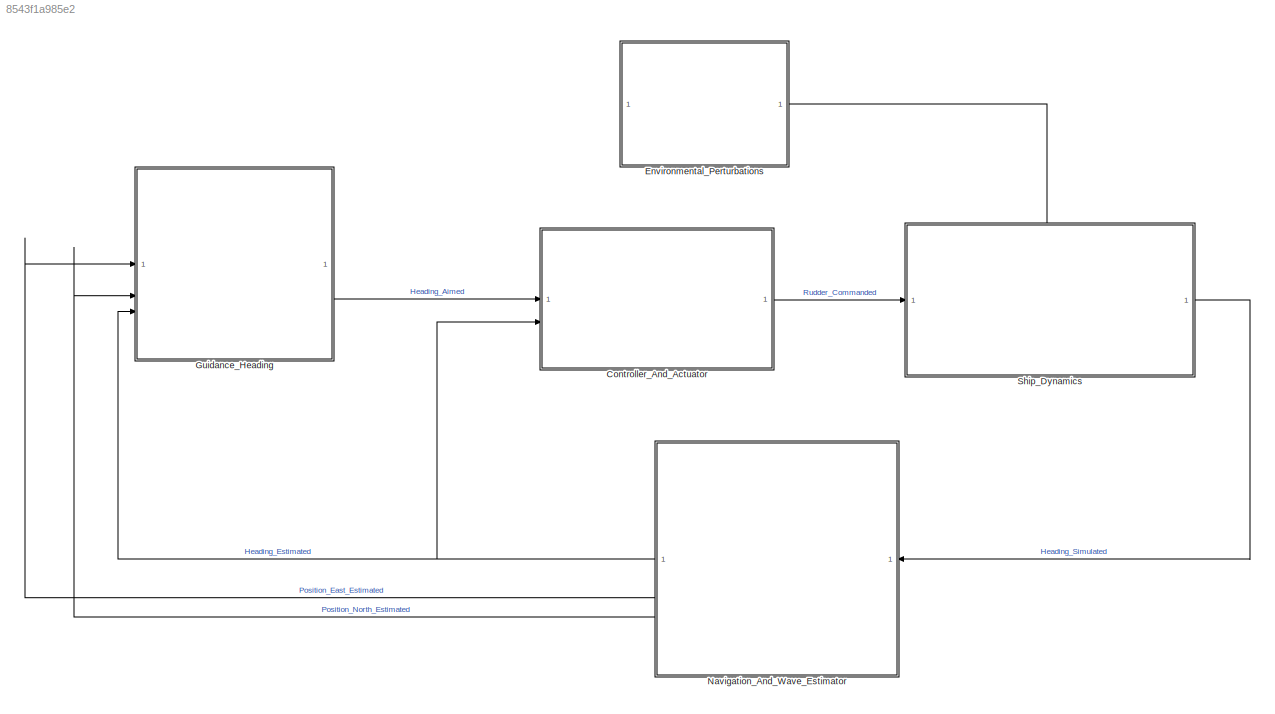
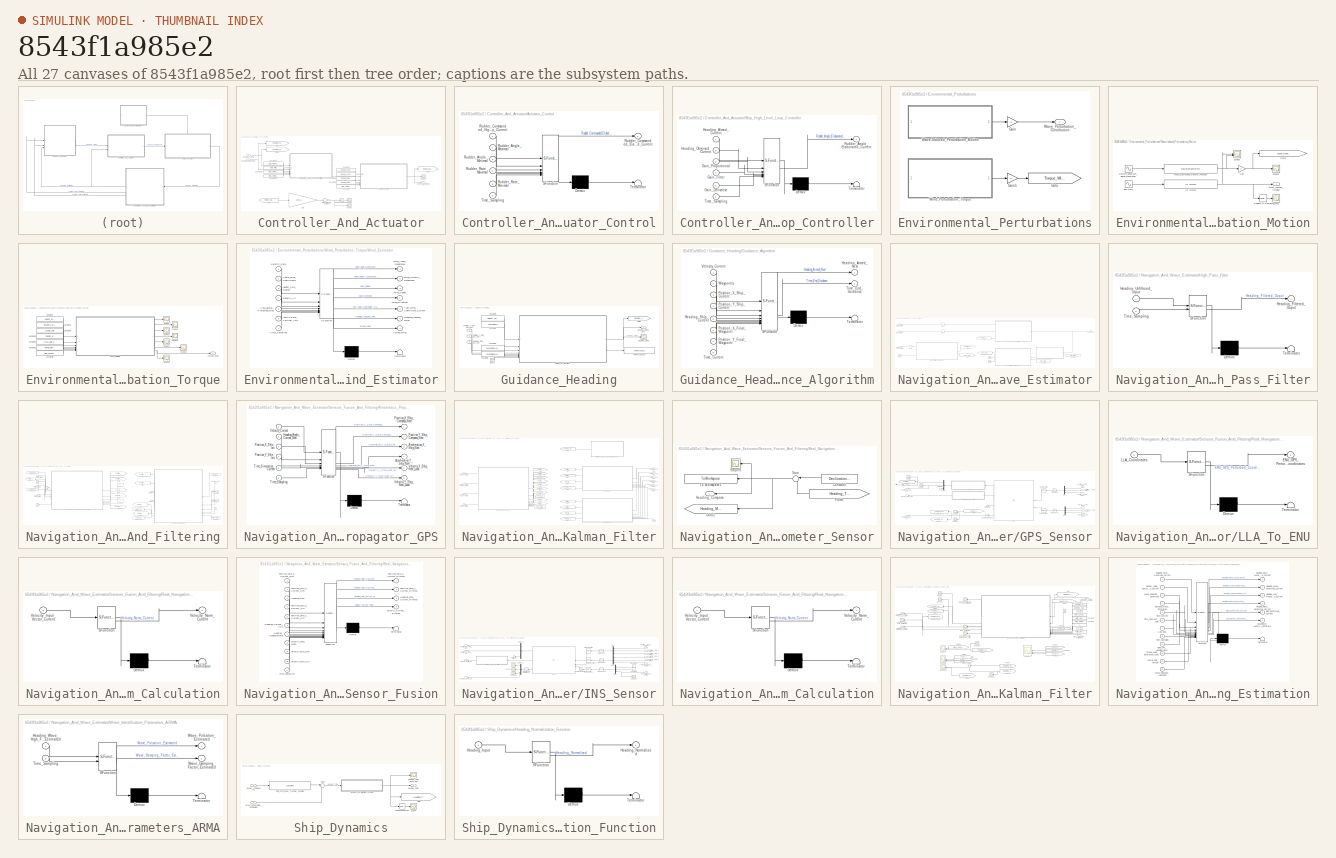
[diagram: thumbnail index - all 27 canvases of the model, root first then tree order]
MODEL slx_8543f1a985e2
KIND model
CONFIG AbsTol = auto
CONFIG EnableMultiTasking = off
CONFIG FixedStep = auto
CONFIG MaxStep = auto
CONFIG MinStep = auto
CONFIG RelTol = 1e-3
CONFIG SampleTimeConstraint = Unconstrained
CONFIG SolverName = VariableStepAuto
CONFIG StartTime = 0.0
CONFIG StopTime = 1000
BLOCK [SubSystem] Controller_And_Actuator
BLOCK [SubSystem] Controller_And_Actuator/Actuator_Control
  ErrorFcn = Stateflow.Translate.translate
  PermitHierarchicalResolution = ExplicitOnly
  SFBlockType = MATLAB Function
  SystemSampleTime = Time_Period_Sampling
  TreatAsAtomicUnit = on
BLOCK [Demux] Controller_And_Actuator/Actuator_Control/ Demux 
  Outputs = 1
BLOCK [S-Function] Controller_And_Actuator/Actuator_Control/ SFunction 
  EnableBusSupport = on
  FunctionName = sf_sfun
  PortCounts = [6 2]
  SFcnIsStateOwnerBlock = off
  SFunctionDeploymentMode = off
  Tag = Stateflow S-Function 2
BLOCK [Terminator] Controller_And_Actuator/Actuator_Control/ Terminator 
BLOCK [Inport] Controller_And_Actuator/Actuator_Control/Rudder_Angle_Maximal
  Port = 2
BLOCK [Inport] Controller_And_Actuator/Actuator_Control/Rudder_Angle_Minimal
  Port = 3
BLOCK [Outport] Controller_And_Actuator/Actuator_Control/Rudder_Commanded_Elaborated_Current
BLOCK [Inport] Controller_And_Actuator/Actuator_Control/Rudder_Commanded_High_Level_Loop_Current
BLOCK [Inport] Controller_And_Actuator/Actuator_Control/Rudder_Rate_Maximal
  Port = 4
BLOCK [Inport] Controller_And_Actuator/Actuator_Control/Rudder_Rate_Minimal
  Port = 5
BLOCK [Inport] Controller_And_Actuator/Actuator_Control/Time_Sampling
  Port = 6
BLOCK [Constant] Controller_And_Actuator/Constant1
  Value = Rudder_Angle_Maximal
BLOCK [Constant] Controller_And_Actuator/Constant2
  Value = Rudder_Angle_Minimal
BLOCK [Constant] Controller_And_Actuator/Constant22
  Value = Gain_Proportional
BLOCK [Constant] Controller_And_Actuator/Constant23
  Value = Gain_Filter
BLOCK [Constant] Controller_And_Actuator/Constant24
  Value = Gain_Derivative
BLOCK [Constant] Controller_And_Actuator/Constant25
  Value = Time_Period_Sampling
BLOCK [Constant] Controller_And_Actuator/Constant3
  Value = Rudder_Rate_Maximal
BLOCK [Constant] Controller_And_Actuator/Constant4
  Value = Rudder_Rate_Minimal
BLOCK [Constant] Controller_And_Actuator/Constant5
  Value = Time_Period_Sampling
BLOCK [Gain] Controller_And_Actuator/Dimensioning_Coefficient
BLOCK [From] Controller_And_Actuator/From
  GotoTag = Torque_Wind_Generated
  TagVisibility = global
BLOCK [Gain] Controller_And_Actuator/Gain
  Gain = 1/Yaw_Control_Hydrodynamics_Derivative
BLOCK [Goto] Controller_And_Actuator/Goto2
  GotoTag = Heading_Guidance
  TagVisibility = global
BLOCK [Goto] Controller_And_Actuator/Goto3
  GotoTag = Heading_Observed
  TagVisibility = global
BLOCK [Goto] Controller_And_Actuator/Goto4
  GotoTag = Rudder_Commanded
  TagVisibility = global
BLOCK [Inport] Controller_And_Actuator/Heading_Aimed
BLOCK [Inport] Controller_And_Actuator/Heading_Observed
  Port = 2
BLOCK [Reference] Controller_And_Actuator/Radians to Degrees  REF=simulink_extras/Transformations/Radians
to Degrees
  SourceBlock = simulink_extras/Transformations/Radians\nto Degrees
  SourceType = RadiansToDegrees
BLOCK [Outport] Controller_And_Actuator/Rudder_Commanded
BLOCK [Scope] Controller_And_Actuator/Scope
  Floating = off
  NumInputPorts = 1
  ScopeSpecificationString = Simulink.scopes.TimeScopeBlockCfg('CurrentConfiguration', extmgr.ConfigurationSet(extmgr.Configuration('Core','General UI',true),extmgr.Configuration('Core','Source UI',true),extmgr.Configuration('Sources','WiredSimulink',true,'DataLoggingVariableName','ScopeData1'),extmgr.Configuration('Visuals','Time Domain',true,'SerializedDisplays',{struct('MinYLimReal','-1.00000','MaxYLimReal','1.00000','YLab...<+1491ch>
BLOCK [Scope] Controller_And_Actuator/Scope1
  Floating = off
  NumInputPorts = 1
  ScopeSpecificationString = Simulink.scopes.TimeScopeBlockCfg('CurrentConfiguration', extmgr.ConfigurationSet(extmgr.Configuration('Core','General UI',true),extmgr.Configuration('Core','Source UI',true),extmgr.Configuration('Sources','WiredSimulink',true,'DataLoggingVariableName','ScopeData2'),extmgr.Configuration('Visuals','Time Domain',true,'SerializedDisplays',{struct('MinYLimReal','-0.67739','MaxYLimReal','0.74105','YLab...<+1464ch>
BLOCK [Scope] Controller_And_Actuator/Scope2
  Floating = off
  NumInputPorts = 1
  ScopeSpecificationString = Simulink.scopes.TimeScopeBlockCfg('CurrentConfiguration', extmgr.ConfigurationSet(extmgr.Configuration('Core','General UI',true),extmgr.Configuration('Core','Source UI',true),extmgr.Configuration('Sources','WiredSimulink',true,'DataLoggingVariableName','ScopeData2'),extmgr.Configuration('Visuals','Time Domain',true,'SerializedDisplays',{struct('MinYLimReal','-1.00000','MaxYLimReal','1.00000','YLab...<+1497ch>
BLOCK [SubSystem] Controller_And_Actuator/Ship_High_Level_Loop_Controller
  ErrorFcn = Stateflow.Translate.translate
  PermitHierarchicalResolution = ExplicitOnly
  SFBlockType = MATLAB Function
  SystemSampleTime = Time_Period_Sampling
  TreatAsAtomicUnit = on
BLOCK [Demux] Controller_And_Actuator/Ship_High_Level_Loop_Controller/ Demux 
  Outputs = 1
BLOCK [S-Function] Controller_And_Actuator/Ship_High_Level_Loop_Controller/ SFunction 
  EnableBusSupport = on
  FunctionName = sf_sfun
  PortCounts = [6 2]
  SFcnIsStateOwnerBlock = off
  SFunctionDeploymentMode = off
  Tag = Stateflow S-Function 13
BLOCK [Terminator] Controller_And_Actuator/Ship_High_Level_Loop_Controller/ Terminator 
BLOCK [Inport] Controller_And_Actuator/Ship_High_Level_Loop_Controller/Gain_Derivative
  Port = 5
BLOCK [Inport] Controller_And_Actuator/Ship_High_Level_Loop_Controller/Gain_Filter
  Port = 4
BLOCK [Inport] Controller_And_Actuator/Ship_High_Level_Loop_Controller/Gain_Proportional
  Port = 3
BLOCK [Inport] Controller_And_Actuator/Ship_High_Level_Loop_Controller/Heading_Aimed_Current
BLOCK [Inport] Controller_And_Actuator/Ship_High_Level_Loop_Controller/Heading_Observed_Current
  Port = 2
BLOCK [Outport] Controller_And_Actuator/Ship_High_Level_Loop_Controller/Rudder_Angle_Elaborated_Current
BLOCK [Inport] Controller_And_Actuator/Ship_High_Level_Loop_Controller/Time_Sampling
  Port = 6
BLOCK [SubSystem] Environmental_Perturbations
BLOCK [Gain] Environmental_Perturbations/Gain
BLOCK [Gain] Environmental_Perturbations/Gain1
BLOCK [Goto] Environmental_Perturbations/Goto
  GotoTag = Torque_Wind_Generated
  TagVisibility = global
BLOCK [SubSystem] Environmental_Perturbations/Wave-Induced_Perturbation_Motion
BLOCK [Sin] Environmental_Perturbations/Wave-Induced_Perturbation_Motion/Discrete_Sinewave_Signal_Generation
  Amplitude = 2*(pi/180)
  Frequency = Pulsation_Wave
  SampleTime = Time_Period_Sampling
BLOCK [Gain] Environmental_Perturbations/Wave-Induced_Perturbation_Motion/Gain
BLOCK [Goto] Environmental_Perturbations/Wave-Induced_Perturbation_Motion/Goto2
  GotoTag = Wave_Generated_Signal
  TagVisibility = global
BLOCK [Reference] Environmental_Perturbations/Wave-Induced_Perturbation_Motion/LTI System  REF=cstblocks/LTI System
  SourceBlock = cstblocks/LTI System
  SourceType = LTI Block
BLOCK [Reference] Environmental_Perturbations/Wave-Induced_Perturbation_Motion/Radians to Degrees  REF=simulink_extras/Transformations/Radians
to Degrees
  SourceBlock = simulink_extras/Transformations/Radians\nto Degrees
  SourceType = RadiansToDegrees
BLOCK [Scope] Environmental_Perturbations/Wave-Induced_Perturbation_Motion/Scope1
  Floating = off
  NumInputPorts = 1
  ScopeSpecificationString = Simulink.scopes.TimeScopeBlockCfg('CurrentConfiguration', extmgr.ConfigurationSet(extmgr.Configuration('Core','General UI',true),extmgr.Configuration('Core','Source UI',true),extmgr.Configuration('Sources','WiredSimulink',true,'DataLoggingVariableName','ScopeData1'),extmgr.Configuration('Visuals','Time Domain',true,'SerializedDisplays',{struct('MinYLimReal','-21.875','MaxYLimReal','21.875','YLabel...<+1514ch>
BLOCK [Scope] Environmental_Perturbations/Wave-Induced_Perturbation_Motion/Scope3
  Floating = off
  NumInputPorts = 2
  ScopeSpecificationString = Simulink.scopes.TimeScopeBlockCfg('CurrentConfiguration', extmgr.ConfigurationSet(extmgr.Configuration('Core','General UI',true),extmgr.Configuration('Core','Source UI',true),extmgr.Configuration('Sources','WiredSimulink',true,'DataLoggingVariableName','ScopeData2'),extmgr.Configuration('Visuals','Time Domain',true,'SerializedDisplays',{struct('MinYLimReal','-0.15272','MaxYLimReal','0.15272','YLab...<+1549ch>
BLOCK [Scope] Environmental_Perturbations/Wave-Induced_Perturbation_Motion/Scope5
  Floating = off
  NumInputPorts = 1
  ScopeSpecificationString = Simulink.scopes.TimeScopeBlockCfg('CurrentConfiguration', extmgr.ConfigurationSet(extmgr.Configuration('Core','General UI',true),extmgr.Configuration('Core','Source UI',true),extmgr.Configuration('Sources','WiredSimulink',true,'DataLoggingVariableName','ScopeData2'),extmgr.Configuration('Visuals','Time Domain',true,'SerializedDisplays',{struct('MinYLimReal','-0.15272','MaxYLimReal','0.15272','YLab...<+1506ch>
BLOCK [Sin] Environmental_Perturbations/Wave-Induced_Perturbation_Motion/Sine Wave
  Amplitude = 2*(pi/180)
  Frequency = Pulsation_Wave
  SampleTime = 0
BLOCK [DiscreteTransferFcn] Environmental_Perturbations/Wave-Induced_Perturbation_Motion/Wave_Discretized_Transfer_Function
  Denominator = [Wave_Transfer_Function_Discrete.Denominator{1}]
  InputPortMap = u0
  Numerator = [Wave_Transfer_Function_Discrete.Numerator{1}]
BLOCK [Outport] Environmental_Perturbations/Wave-Induced_Perturbation_Motion/Wave_Induced_Heading
BLOCK [Outport] Environmental_Perturbations/Wave_Perturbation_Contribution
BLOCK [SubSystem] Environmental_Perturbations/Wind_Perturbation_Torque
BLOCK [Constant] Environmental_Perturbations/Wind_Perturbation_Torque/Constant
  Value = Velocity_Ship_Mean
BLOCK [Constant] Environmental_Perturbations/Wind_Perturbation_Torque/Constant1
  Value = Structure_Wind_Coefficient
BLOCK [Constant] Environmental_Perturbations/Wind_Perturbation_Torque/Constant2
  Value = Length_Ship
BLOCK [Constant] Environmental_Perturbations/Wind_Perturbation_Torque/Constant3
  Value = Density_Air
BLOCK [Constant] Environmental_Perturbations/Wind_Perturbation_Torque/Constant4
  Value = Area_Lateral_Projected_Wind
BLOCK [Constant] Environmental_Perturbations/Wind_Perturbation_Torque/Constant5
  Value = Inertia_Moment
BLOCK [Constant] Environmental_Perturbations/Wind_Perturbation_Torque/Constant6
  Value = Time_Period_Sampling
BLOCK [Scope] Environmental_Perturbations/Wind_Perturbation_Torque/Scope
  Floating = off
  NumInputPorts = 1
  ScopeSpecificationString = Simulink.scopes.TimeScopeBlockCfg('CurrentConfiguration', extmgr.ConfigurationSet(extmgr.Configuration('Core','General UI',true),extmgr.Configuration('Core','Source UI',true),extmgr.Configuration('Sources','WiredSimulink',true,'DataLoggingVariableName','ScopeData1'),extmgr.Configuration('Visuals','Time Domain',true,'SerializedDisplays',{struct('MinYLimReal','0.46624','MaxYLimReal','1.26479','YLabe...<+1546ch>
BLOCK [Scope] Environmental_Perturbations/Wind_Perturbation_Torque/Scope1
  Floating = off
  NumInputPorts = 1
  ScopeSpecificationString = Simulink.scopes.TimeScopeBlockCfg('CurrentConfiguration', extmgr.ConfigurationSet(extmgr.Configuration('Core','General UI',true),extmgr.Configuration('Core','Source UI',true),extmgr.Configuration('Sources','WiredSimulink',true,'DataLoggingVariableName','ScopeData2'),extmgr.Configuration('Visuals','Time Domain',true,'SerializedDisplays',{struct('MinYLimReal','0.11602','MaxYLimReal','1.85545','YLabe...<+1493ch>
BLOCK [Scope] Environmental_Perturbations/Wind_Perturbation_Torque/Scope2
  Floating = off
  NumInputPorts = 1
  ScopeSpecificationString = Simulink.scopes.TimeScopeBlockCfg('CurrentConfiguration', extmgr.ConfigurationSet(extmgr.Configuration('Core','General UI',true),extmgr.Configuration('Core','Source UI',true),extmgr.Configuration('Sources','WiredSimulink',true,'DataLoggingVariableName','ScopeData3'),extmgr.Configuration('Visuals','Time Domain',true,'SerializedDisplays',{struct('MinYLimReal','0.60345','MaxYLimReal','1.85596','YLabe...<+1480ch>
BLOCK [Scope] Environmental_Perturbations/Wind_Perturbation_Torque/Scope3
  Floating = off
  NumInputPorts = 1
  ScopeSpecificationString = Simulink.scopes.TimeScopeBlockCfg('CurrentConfiguration', extmgr.ConfigurationSet(extmgr.Configuration('Core','General UI',true),extmgr.Configuration('Core','Source UI',true),extmgr.Configuration('Sources','WiredSimulink',true,'DataLoggingVariableName','ScopeData4'),extmgr.Configuration('Visuals','Time Domain',true,'SerializedDisplays',{struct('MinYLimReal','0.041','MaxYLimReal','1.52319','YLabelR...<+1476ch>
BLOCK [Scope] Environmental_Perturbations/Wind_Perturbation_Torque/Scope4
  Floating = off
  NumInputPorts = 1
  ScopeSpecificationString = Simulink.scopes.TimeScopeBlockCfg('CurrentConfiguration', extmgr.ConfigurationSet(extmgr.Configuration('Core','General UI',true),extmgr.Configuration('Core','Source UI',true),extmgr.Configuration('Sources','WiredSimulink',true,'DataLoggingVariableName','ScopeData5'),extmgr.Configuration('Visuals','Time Domain',true,'SerializedDisplays',{struct('MinYLimReal','-0.21415','MaxYLimReal','0.12731','YLab...<+1519ch>
BLOCK [Scope] Environmental_Perturbations/Wind_Perturbation_Torque/Scope5
  Floating = off
  NumInputPorts = 1
  ScopeSpecificationString = Simulink.scopes.TimeScopeBlockCfg('CurrentConfiguration', extmgr.ConfigurationSet(extmgr.Configuration('Core','General UI',true),extmgr.Configuration('Core','Source UI',true),extmgr.Configuration('Sources','WiredSimulink',true,'DataLoggingVariableName','ScopeData6'),extmgr.Configuration('Visuals','Time Domain',true,'SerializedDisplays',{struct('MinYLimReal','-25538.74251','MaxYLimReal','229864.390...<+1561ch>
BLOCK [Scope] Environmental_Perturbations/Wind_Perturbation_Torque/Scope6
  Floating = off
  NumInputPorts = 1
  ScopeSpecificationString = Simulink.scopes.TimeScopeBlockCfg('CurrentConfiguration', extmgr.ConfigurationSet(extmgr.Configuration('Core','General UI',true),extmgr.Configuration('Core','Source UI',true),extmgr.Configuration('Sources','WiredSimulink',true,'DataLoggingVariableName','ScopeData7'),extmgr.Configuration('Visuals','Time Domain',true,'SerializedDisplays',{struct('MinYLimReal','-89.63768','MaxYLimReal','829.34771','Y...<+1509ch>
BLOCK [Outport] Environmental_Perturbations/Wind_Perturbation_Torque/Torque_Wind
BLOCK [SubSystem] Environmental_Perturbations/Wind_Perturbation_Torque/Wind_Estimator
  ErrorFcn = Stateflow.Translate.translate
  PermitHierarchicalResolution = ExplicitOnly
  SFBlockType = MATLAB Function
  SystemSampleTime = Time_Period_Sampling
  TreatAsAtomicUnit = on
BLOCK [Demux] Environmental_Perturbations/Wind_Perturbation_Torque/Wind_Estimator/ Demux 
  Outputs = 1
BLOCK [S-Function] Environmental_Perturbations/Wind_Perturbation_Torque/Wind_Estimator/ SFunction 
  EnableBusSupport = on
  FunctionName = sf_sfun
  PortCounts = [7 8]
  SFcnIsStateOwnerBlock = off
  SFunctionDeploymentMode = off
  Tag = Stateflow S-Function 8
BLOCK [Terminator] Environmental_Perturbations/Wind_Perturbation_Torque/Wind_Estimator/ Terminator 
BLOCK [Inport] Environmental_Perturbations/Wind_Perturbation_Torque/Wind_Estimator/Area_Lateral_Projected_Wind
  Port = 5
BLOCK [Inport] Environmental_Perturbations/Wind_Perturbation_Torque/Wind_Estimator/Density_Air
  Port = 4
BLOCK [Outport] Environmental_Perturbations/Wind_Perturbation_Torque/Wind_Estimator/Heading_Induced_Wind
  Port = 6
BLOCK [Inport] Environmental_Perturbations/Wind_Perturbation_Torque/Wind_Estimator/Inertia_Ship_Vertical_Axis
  Port = 6
BLOCK [Inport] Environmental_Perturbations/Wind_Perturbation_Torque/Wind_Estimator/Lenght_Ship_Overall
  Port = 3
BLOCK [Inport] Environmental_Perturbations/Wind_Perturbation_Torque/Wind_Estimator/Table_Wind_Coefficients
  Port = 2
BLOCK [Inport] Environmental_Perturbations/Wind_Perturbation_Torque/Wind_Estimator/Time_Sampling
  Port = 7
BLOCK [Outport] Environmental_Perturbations/Wind_Perturbation_Torque/Wind_Estimator/Torque_Wind
  Port = 7
BLOCK [Inport] Environmental_Perturbations/Wind_Perturbation_Torque/Wind_Estimator/Velocity_Ship
BLOCK [Outport] Environmental_Perturbations/Wind_Perturbation_Torque/Wind_Estimator/Wind_Angle_Generated
BLOCK [Outport] Environmental_Perturbations/Wind_Perturbation_Torque/Wind_Estimator/Wind_Direction
  Port = 4
BLOCK [Outport] Environmental_Perturbations/Wind_Perturbation_Torque/Wind_Estimator/Wind_Speed
  Port = 3
BLOCK [Outport] Environmental_Perturbations/Wind_Perturbation_Torque/Wind_Estimator/Wind_Velocity_Generated
  Port = 2
BLOCK [Outport] Environmental_Perturbations/Wind_Perturbation_Torque/Wind_Estimator/Yaw_Wind_Coefficient_Current
  Port = 5
BLOCK [SubSystem] Guidance_Heading
BLOCK [Clock] Guidance_Heading/Clock1
BLOCK [Constant] Guidance_Heading/Constant3
  Value = Velocity_Ship_Mean
BLOCK [Constant] Guidance_Heading/Constant4
  Value = Waypoints
BLOCK [Constant] Guidance_Heading/Constant5
  Value = Waypoints(end,1)
BLOCK [Constant] Guidance_Heading/Constant6
  Value = Waypoints(end,2)
BLOCK [Goto] Guidance_Heading/Goto5
  GotoTag = Heading_Aimed
  TagVisibility = global
BLOCK [SubSystem] Guidance_Heading/Guidance_Algorithm
  ErrorFcn = Stateflow.Translate.translate
  PermitHierarchicalResolution = ExplicitOnly
  SFBlockType = MATLAB Function
  SystemSampleTime = Time_Guidance_Sampling*3
  TreatAsAtomicUnit = on
BLOCK [Demux] Guidance_Heading/Guidance_Algorithm/ Demux 
  Outputs = 1
BLOCK [S-Function] Guidance_Heading/Guidance_Algorithm/ SFunction 
  EnableBusSupport = on
  FunctionName = sf_sfun
  PortCounts = [8 3]
  SFcnIsStateOwnerBlock = off
  SFunctionDeploymentMode = off
  Tag = Stateflow S-Function 1
BLOCK [Terminator] Guidance_Heading/Guidance_Algorithm/ Terminator 
BLOCK [Outport] Guidance_Heading/Guidance_Algorithm/Heading_Aimed_Next
BLOCK [Inport] Guidance_Heading/Guidance_Algorithm/Heading_Ship_Current
  Port = 5
BLOCK [Inport] Guidance_Heading/Guidance_Algorithm/Position_X_Final_Waypoint
  Port = 6
BLOCK [Inport] Guidance_Heading/Guidance_Algorithm/Position_X_Ship_Current
  Port = 3
BLOCK [Inport] Guidance_Heading/Guidance_Algorithm/Position_Y_Final_Waypoint
  Port = 7
BLOCK [Inport] Guidance_Heading/Guidance_Algorithm/Position_Y_Ship_Current
  Port = 4
BLOCK [Inport] Guidance_Heading/Guidance_Algorithm/Time_Current
  Port = 8
BLOCK [Outport] Guidance_Heading/Guidance_Algorithm/Time_End_Guidance
  Port = 2
BLOCK [Inport] Guidance_Heading/Guidance_Algorithm/Velocity_Current
BLOCK [Inport] Guidance_Heading/Guidance_Algorithm/Waypoints
  Port = 2
BLOCK [Scope] Guidance_Heading/Heading_Aimed
  Floating = off
  NumInputPorts = 1
  ScopeSpecificationString = Simulink.scopes.TimeScopeBlockCfg('CurrentConfiguration', extmgr.ConfigurationSet(extmgr.Configuration('Core','General UI',true),extmgr.Configuration('Core','Source UI',true),extmgr.Configuration('Sources','WiredSimulink',true,'DataLoggingVariableName','ScopeData13'),extmgr.Configuration('Visuals','Time Domain',true,'SerializedDisplays',{struct('MinYLimReal','0.89969','MaxYLimReal','2.67106','YLab...<+1537ch>
BLOCK [Outport] Guidance_Heading/Heading_Aimed_Next
BLOCK [Inport] Guidance_Heading/Heading_Ship_Current
  Port = 3
BLOCK [Inport] Guidance_Heading/Position_X_Ship_Current
BLOCK [Inport] Guidance_Heading/Position_Y_Ship_Current
  Port = 2
BLOCK [ToWorkspace] Guidance_Heading/To Workspace2
  FixptAsFi = on
  MaxDataPoints = inf
  SampleTime = -1
  SaveFormat = Timeseries
  VariableName = Time_End_Guidance_Algorithm
BLOCK [SubSystem] Navigation_And_Wave_Estimator
BLOCK [Constant] Navigation_And_Wave_Estimator/Constant1
  Value = Time_Period_Sampling
BLOCK [Constant] Navigation_And_Wave_Estimator/Constant2
  Value = Time_Period_Sampling
BLOCK [Delay] Navigation_And_Wave_Estimator/Delay
  DelayLength = 1
  InputPortMap = u0
  InputProcessing = Columns as channels (frame based)
  NameLocation = top
  SampleTime = Time_Period_Sampling
BLOCK [Delay] Navigation_And_Wave_Estimator/Delay1
  DelayLength = 1
  InputPortMap = u0
  InputProcessing = Columns as channels (frame based)
  NameLocation = top
  SampleTime = Time_Period_Sampling
BLOCK [Delay] Navigation_And_Wave_Estimator/Delay2
  DelayLength = 1
  InputPortMap = u0
  InputProcessing = Columns as channels (frame based)
  NameLocation = top
  SampleTime = Time_Period_Sampling
BLOCK [From] Navigation_And_Wave_Estimator/From
  GotoTag = Heading_Ship_Fused_Filtered
BLOCK [From] Navigation_And_Wave_Estimator/From1
  GotoTag = Wave_Pulsation_Estimated
BLOCK [Goto] Navigation_And_Wave_Estimator/Goto
  GotoTag = Heading_Ship_Fused_Filtered
BLOCK [Goto] Navigation_And_Wave_Estimator/Goto1
  GotoTag = Wave_Pulsation_Estimated
BLOCK [Outport] Navigation_And_Wave_Estimator/Heading_Low_Frequency_Filtered_Estimated
BLOCK [Inport] Navigation_And_Wave_Estimator/Heading_Total
BLOCK [SubSystem] Navigation_And_Wave_Estimator/High_Pass_Filter
  ErrorFcn = Stateflow.Translate.translate
  PermitHierarchicalResolution = ExplicitOnly
  SFBlockType = MATLAB Function
  SystemSampleTime = Time_Period_Sampling
  TreatAsAtomicUnit = on
BLOCK [Demux] Navigation_And_Wave_Estimator/High_Pass_Filter/ Demux 
  Outputs = 1
BLOCK [S-Function] Navigation_And_Wave_Estimator/High_Pass_Filter/ SFunction 
  EnableBusSupport = on
  FunctionName = sf_sfun
  PortCounts = [2 2]
  SFcnIsStateOwnerBlock = off
  SFunctionDeploymentMode = off
  Tag = Stateflow S-Function 10
BLOCK [Terminator] Navigation_And_Wave_Estimator/High_Pass_Filter/ Terminator 
BLOCK [Outport] Navigation_And_Wave_Estimator/High_Pass_Filter/Heading_Filtered_Ouput
BLOCK [Inport] Navigation_And_Wave_Estimator/High_Pass_Filter/Heading_Unfiltered_Input
BLOCK [Inport] Navigation_And_Wave_Estimator/High_Pass_Filter/Time_Sampling
  Port = 2
BLOCK [Outport] Navigation_And_Wave_Estimator/Position_X_Ship_Current_Estimated
  Port = 2
BLOCK [Outport] Navigation_And_Wave_Estimator/Position_Y_Ship_Current_Estimated
  Port = 3
BLOCK [Scope] Navigation_And_Wave_Estimator/Scope
  Floating = off
  NumInputPorts = 1
  ScopeSpecificationString = Simulink.scopes.TimeScopeBlockCfg('CurrentConfiguration', extmgr.ConfigurationSet(extmgr.Configuration('Core','General UI',true),extmgr.Configuration('Core','Source UI',true),extmgr.Configuration('Sources','WiredSimulink',true,'DataLoggingVariableName','ScopeData1'),extmgr.Configuration('Visuals','Time Domain',true),extmgr.Configuration('Tools','Plot Navigation',true),extmgr.Configuration('Tools',...<+40ch>  <repeated x3 — deduplicated; at blocks: Scope, Scope2, Scope4>
BLOCK [Scope] Navigation_And_Wave_Estimator/Scope1
  Floating = off
  NumInputPorts = 1
  ScopeSpecificationString = Simulink.scopes.TimeScopeBlockCfg('CurrentConfiguration', extmgr.ConfigurationSet(extmgr.Configuration('Core','General UI',true),extmgr.Configuration('Core','Source UI',true),extmgr.Configuration('Sources','WiredSimulink',true,'DataLoggingVariableName','ScopeData2'),extmgr.Configuration('Visuals','Time Domain',true,'SerializedDisplays',{struct('MinYLimReal','0.58413','MaxYLimReal','0.70727','YLabe...<+1525ch>
BLOCK [Scope] Navigation_And_Wave_Estimator/Scope2
  Floating = off
  NumInputPorts = 1
BLOCK [SubSystem] Navigation_And_Wave_Estimator/Sensors_Fusion_And_Filtering
BLOCK [Clock] Navigation_And_Wave_Estimator/Sensors_Fusion_And_Filtering/Clock
BLOCK [Constant] Navigation_And_Wave_Estimator/Sensors_Fusion_And_Filtering/Constant
  Value = Velocity_Ship_Mean
BLOCK [Constant] Navigation_And_Wave_Estimator/Sensors_Fusion_And_Filtering/Constant1
  Value = Position_Initial_X
BLOCK [Constant] Navigation_And_Wave_Estimator/Sensors_Fusion_And_Filtering/Constant2
  Value = Position_Initial_Y
BLOCK [Constant] Navigation_And_Wave_Estimator/Sensors_Fusion_And_Filtering/Constant3
  Value = Time_Period_Sampling
BLOCK [Constant] Navigation_And_Wave_Estimator/Sensors_Fusion_And_Filtering/Constant4
  Value = 0
BLOCK [Constant] Navigation_And_Wave_Estimator/Sensors_Fusion_And_Filtering/Constant5
  Value = 0
BLOCK [From] Navigation_And_Wave_Estimator/Sensors_Fusion_And_Filtering/From
  GotoTag = Position_X_Ship_Propagated
  TagVisibility = global
BLOCK [From] Navigation_And_Wave_Estimator/Sensors_Fusion_And_Filtering/From1
  GotoTag = Position_Y_Ship_Propagated
  TagVisibility = global
BLOCK [From] Navigation_And_Wave_Estimator/Sensors_Fusion_And_Filtering/From2
  GotoTag = Velocity_X_Ship_Propagated
  TagVisibility = global
BLOCK [From] Navigation_And_Wave_Estimator/Sensors_Fusion_And_Filtering/From3
  GotoTag = Velocity_Y_Ship_Propagated
  TagVisibility = global
BLOCK [From] Navigation_And_Wave_Estimator/Sensors_Fusion_And_Filtering/From4
  GotoTag = Heading_Total_Wave_Control
  TagVisibility = global
BLOCK [Goto] Navigation_And_Wave_Estimator/Sensors_Fusion_And_Filtering/Goto
  GotoTag = Position_X_Filtered
  TagVisibility = global
BLOCK [Goto] Navigation_And_Wave_Estimator/Sensors_Fusion_And_Filtering/Goto1
  GotoTag = Position_X_Ship_Propagated
  TagVisibility = global
BLOCK [Goto] Navigation_And_Wave_Estimator/Sensors_Fusion_And_Filtering/Goto2
  GotoTag = Position_Y_Ship_Propagated
  TagVisibility = global
BLOCK [Goto] Navigation_And_Wave_Estimator/Sensors_Fusion_And_Filtering/Goto3
  GotoTag = Velocity_X_Ship_Propagated
  TagVisibility = global
BLOCK [Goto] Navigation_And_Wave_Estimator/Sensors_Fusion_And_Filtering/Goto4
  GotoTag = Velocity_Y_Ship_Propagated
  TagVisibility = global
BLOCK [Outport] Navigation_And_Wave_Estimator/Sensors_Fusion_And_Filtering/Heading_Ship_Current_Filtered
  Port = 3
BLOCK [Inport] Navigation_And_Wave_Estimator/Sensors_Fusion_And_Filtering/Heading_Total
BLOCK [SubSystem] Navigation_And_Wave_Estimator/Sensors_Fusion_And_Filtering/Kinematics_Propagator_GPS
  ErrorFcn = Stateflow.Translate.translate
  PermitHierarchicalResolution = ExplicitOnly
  SFBlockType = MATLAB Function
  SystemSampleTime = Time_Period_Sampling
  TreatAsAtomicUnit = on
BLOCK [Demux] Navigation_And_Wave_Estimator/Sensors_Fusion_And_Filtering/Kinematics_Propagator_GPS/ Demux 
  Outputs = 1
BLOCK [S-Function] Navigation_And_Wave_Estimator/Sensors_Fusion_And_Filtering/Kinematics_Propagator_GPS/ SFunction 
  EnableBusSupport = on
  FunctionName = sf_sfun
  PortCounts = [6 7]
  SFcnIsStateOwnerBlock = off
  SFunctionDeploymentMode = off
  Tag = Stateflow S-Function 3
BLOCK [Terminator] Navigation_And_Wave_Estimator/Sensors_Fusion_And_Filtering/Kinematics_Propagator_GPS/ Terminator 
BLOCK [Outport] Navigation_And_Wave_Estimator/Sensors_Fusion_And_Filtering/Kinematics_Propagator_GPS/Acceleration_X_Ship_Next
  Port = 3
BLOCK [Outport] Navigation_And_Wave_Estimator/Sensors_Fusion_And_Filtering/Kinematics_Propagator_GPS/Acceleration_Y_Ship_Next
  Port = 4
BLOCK [Inport] Navigation_And_Wave_Estimator/Sensors_Fusion_And_Filtering/Kinematics_Propagator_GPS/Heading_Angle_Current_Mes
  Port = 2
BLOCK [Outport] Navigation_And_Wave_Estimator/Sensors_Fusion_And_Filtering/Kinematics_Propagator_GPS/Position_X_Ship_Compass_Next
BLOCK [Inport] Navigation_And_Wave_Estimator/Sensors_Fusion_And_Filtering/Kinematics_Propagator_GPS/Position_X_Ship_Init
  Port = 3
BLOCK [Outport] Navigation_And_Wave_Estimator/Sensors_Fusion_And_Filtering/Kinematics_Propagator_GPS/Position_Y_Ship_Compass_Next
  Port = 2
BLOCK [Inport] Navigation_And_Wave_Estimator/Sensors_Fusion_And_Filtering/Kinematics_Propagator_GPS/Position_Y_Ship_Init
  Port = 4
BLOCK [Inport] Navigation_And_Wave_Estimator/Sensors_Fusion_And_Filtering/Kinematics_Propagator_GPS/Time_Sampling
  Port = 6
BLOCK [Inport] Navigation_And_Wave_Estimator/Sensors_Fusion_And_Filtering/Kinematics_Propagator_GPS/Time_Simulation_Current
  Port = 5
BLOCK [Inport] Navigation_And_Wave_Estimator/Sensors_Fusion_And_Filtering/Kinematics_Propagator_GPS/Velocity_Current
BLOCK [Outport] Navigation_And_Wave_Estimator/Sensors_Fusion_And_Filtering/Kinematics_Propagator_GPS/Velocity_X_Ship_Next_Local
  Port = 5
BLOCK [Outport] Navigation_And_Wave_Estimator/Sensors_Fusion_And_Filtering/Kinematics_Propagator_GPS/Velocity_Y_Ship_Next_Local
  Port = 6
BLOCK [Outport] Navigation_And_Wave_Estimator/Sensors_Fusion_And_Filtering/Position_Ship_X_Current_Filtered
BLOCK [Outport] Navigation_And_Wave_Estimator/Sensors_Fusion_And_Filtering/Position_Ship_Y_Current_Filtered
  Port = 2
BLOCK [SubSystem] Navigation_And_Wave_Estimator/Sensors_Fusion_And_Filtering/Real_Navigation_Sensors_Extended_Kalman_Filter
BLOCK [Constant] Navigation_And_Wave_Estimator/Sensors_Fusion_And_Filtering/Real_Navigation_Sensors_Extended_Kalman_Filter/Constant3
  Value = Velocity_Ship_Mean
BLOCK [Constant] Navigation_And_Wave_Estimator/Sensors_Fusion_And_Filtering/Real_Navigation_Sensors_Extended_Kalman_Filter/Constant4
  Value = Time_Period_Sampling
BLOCK [SubSystem] Navigation_And_Wave_Estimator/Sensors_Fusion_And_Filtering/Real_Navigation_Sensors_Extended_Kalman_Filter/Electronic_Compass_Magnetometer_Sensor
BLOCK [Constant] Navigation_And_Wave_Estimator/Sensors_Fusion_And_Filtering/Real_Navigation_Sensors_Extended_Kalman_Filter/Electronic_Compass_Magnetometer_Sensor/Constant
  Value = Declination_Sigean
BLOCK [From] Navigation_And_Wave_Estimator/Sensors_Fusion_And_Filtering/Real_Navigation_Sensors_Extended_Kalman_Filter/Electronic_Compass_Magnetometer_Sensor/From7
  GotoTag = Heading_Total_Wave_Control
  TagVisibility = global
BLOCK [Goto] Navigation_And_Wave_Estimator/Sensors_Fusion_And_Filtering/Real_Navigation_Sensors_Extended_Kalman_Filter/Electronic_Compass_Magnetometer_Sensor/Goto2
  GotoTag = Heading_Magnetometer_Noisy
  TagVisibility = global
BLOCK [Outport] Navigation_And_Wave_Estimator/Sensors_Fusion_And_Filtering/Real_Navigation_Sensors_Extended_Kalman_Filter/Electronic_Compass_Magnetometer_Sensor/Heading_Compass
BLOCK [Scope] Navigation_And_Wave_Estimator/Sensors_Fusion_And_Filtering/Real_Navigation_Sensors_Extended_Kalman_Filter/Electronic_Compass_Magnetometer_Sensor/Scope8
  Floating = off
  NumInputPorts = 1
  ScopeSpecificationString = Simulink.scopes.TimeScopeBlockCfg('CurrentConfiguration', extmgr.ConfigurationSet(extmgr.Configuration('Core','General UI',true),extmgr.Configuration('Core','Source UI',true),extmgr.Configuration('Sources','WiredSimulink',true,'DataLoggingVariableName','ScopeData11'),extmgr.Configuration('Visuals','Time Domain',true,'SerializedDisplays',{struct('MinYLimReal','-0.29846','MaxYLimReal','3.05268','YLa...<+1496ch>
BLOCK [Sum] Navigation_And_Wave_Estimator/Sensors_Fusion_And_Filtering/Real_Navigation_Sensors_Extended_Kalman_Filter/Electronic_Compass_Magnetometer_Sensor/Sum
  Inputs = |++
BLOCK [ToWorkspace] Navigation_And_Wave_Estimator/Sensors_Fusion_And_Filtering/Real_Navigation_Sensors_Extended_Kalman_Filter/Electronic_Compass_Magnetometer_Sensor/To Workspace1
  FixptAsFi = on
  MaxDataPoints = inf
  SampleTime = Time_Period_Sampling
  SaveFormat = Timeseries
  VariableName = Heading_Noisy_Magnetometer
BLOCK [From] Navigation_And_Wave_Estimator/Sensors_Fusion_And_Filtering/Real_Navigation_Sensors_Extended_Kalman_Filter/From
  GotoTag = Position_X_Ship_GPS
BLOCK [From] Navigation_And_Wave_Estimator/Sensors_Fusion_And_Filtering/Real_Navigation_Sensors_Extended_Kalman_Filter/From1
  GotoTag = Position_Y_Ship_GPS
BLOCK [From] Navigation_And_Wave_Estimator/Sensors_Fusion_And_Filtering/Real_Navigation_Sensors_Extended_Kalman_Filter/From2
  GotoTag = Heading_GPS
BLOCK [From] Navigation_And_Wave_Estimator/Sensors_Fusion_And_Filtering/Real_Navigation_Sensors_Extended_Kalman_Filter/From3
  GotoTag = Position_X_Ship_INS
BLOCK [From] Navigation_And_Wave_Estimator/Sensors_Fusion_And_Filtering/Real_Navigation_Sensors_Extended_Kalman_Filter/From4
  GotoTag = Position_Y_Ship_INS
BLOCK [From] Navigation_And_Wave_Estimator/Sensors_Fusion_And_Filtering/Real_Navigation_Sensors_Extended_Kalman_Filter/From5
  GotoTag = Heading_INS
BLOCK [From] Navigation_And_Wave_Estimator/Sensors_Fusion_And_Filtering/Real_Navigation_Sensors_Extended_Kalman_Filter/From6
  GotoTag = Heading_Magnetometer
BLOCK [From] Navigation_And_Wave_Estimator/Sensors_Fusion_And_Filtering/Real_Navigation_Sensors_Extended_Kalman_Filter/From7
  GotoTag = Velocity_Norm_GPS
BLOCK [From] Navigation_And_Wave_Estimator/Sensors_Fusion_And_Filtering/Real_Navigation_Sensors_Extended_Kalman_Filter/From8
  GotoTag = Velocity_Norm_INS
BLOCK [SubSystem] Navigation_And_Wave_Estimator/Sensors_Fusion_And_Filtering/Real_Navigation_Sensors_Extended_Kalman_Filter/GPS_Sensor
BLOCK [Reference] Navigation_And_Wave_Estimator/Sensors_Fusion_And_Filtering/Real_Navigation_Sensors_Extended_Kalman_Filter/GPS_Sensor/Degrees to Radians  REF=simulink_extras/Transformations/Degrees to
Radians
  SourceBlock = simulink_extras/Transformations/Degrees to\nRadians
  SourceType = DegreesToRadians
BLOCK [Demux] Navigation_And_Wave_Estimator/Sensors_Fusion_And_Filtering/Real_Navigation_Sensors_Extended_Kalman_Filter/GPS_Sensor/Demux
  Outputs = 3
BLOCK [From] Navigation_And_Wave_Estimator/Sensors_Fusion_And_Filtering/Real_Navigation_Sensors_Extended_Kalman_Filter/GPS_Sensor/From4
  GotoTag = Heading_Total_Wave_Control
  TagVisibility = global
BLOCK [Reference] Navigation_And_Wave_Estimator/Sensors_Fusion_And_Filtering/Real_Navigation_Sensors_Extended_Kalman_Filter/GPS_Sensor/GPS  REF=sensorgpslib/GPS
  SourceBlock = sensorgpslib/GPS
  SourceType = fusion.internal.simulink.gpsSensor
BLOCK [Goto] Navigation_And_Wave_Estimator/Sensors_Fusion_And_Filtering/Real_Navigation_Sensors_Extended_Kalman_Filter/GPS_Sensor/Goto1
  GotoTag = Heading_GPS_Noisy
  TagVisibility = global
BLOCK [Goto] Navigation_And_Wave_Estimator/Sensors_Fusion_And_Filtering/Real_Navigation_Sensors_Extended_Kalman_Filter/GPS_Sensor/Goto3
  GotoTag = Position_X_Noisy
  TagVisibility = global
BLOCK [Outport] Navigation_And_Wave_Estimator/Sensors_Fusion_And_Filtering/Real_Navigation_Sensors_Extended_Kalman_Filter/GPS_Sensor/Heading_Ship_GPS
  Port = 4
BLOCK [SubSystem] Navigation_And_Wave_Estimator/Sensors_Fusion_And_Filtering/Real_Navigation_Sensors_Extended_Kalman_Filter/GPS_Sensor/LLA_To_ENU
  ErrorFcn = Stateflow.Translate.translate
  PermitHierarchicalResolution = ExplicitOnly
  SFBlockType = MATLAB Function
  SystemSampleTime = Time_Period_Sampling
  TreatAsAtomicUnit = on
BLOCK [Demux] Navigation_And_Wave_Estimator/Sensors_Fusion_And_Filtering/Real_Navigation_Sensors_Extended_Kalman_Filter/GPS_Sensor/LLA_To_ENU/ Demux 
  Outputs = 1
BLOCK [S-Function] Navigation_And_Wave_Estimator/Sensors_Fusion_And_Filtering/Real_Navigation_Sensors_Extended_Kalman_Filter/GPS_Sensor/LLA_To_ENU/ SFunction 
  EnableBusSupport = on
  FunctionName = sf_sfun
  PortCounts = [1 2]
  SFcnIsStateOwnerBlock = off
  SFunctionDeploymentMode = off
  Tag = Stateflow S-Function 6
BLOCK [Terminator] Navigation_And_Wave_Estimator/Sensors_Fusion_And_Filtering/Real_Navigation_Sensors_Extended_Kalman_Filter/GPS_Sensor/LLA_To_ENU/ Terminator 
BLOCK [Outport] Navigation_And_Wave_Estimator/Sensors_Fusion_And_Filtering/Real_Navigation_Sensors_Extended_Kalman_Filter/GPS_Sensor/LLA_To_ENU/ENU_GPS_Perturbed_Coordinates
BLOCK [Inport] Navigation_And_Wave_Estimator/Sensors_Fusion_And_Filtering/Real_Navigation_Sensors_Extended_Kalman_Filter/GPS_Sensor/LLA_To_ENU/LLA_Coordinates
BLOCK [Mux] Navigation_And_Wave_Estimator/Sensors_Fusion_And_Filtering/Real_Navigation_Sensors_Extended_Kalman_Filter/GPS_Sensor/Mux
  DisplayOption = bar
  Inputs = 3
BLOCK [Mux] Navigation_And_Wave_Estimator/Sensors_Fusion_And_Filtering/Real_Navigation_Sensors_Extended_Kalman_Filter/GPS_Sensor/Mux1
  DisplayOption = bar
  Inputs = 3
BLOCK [Inport] Navigation_And_Wave_Estimator/Sensors_Fusion_And_Filtering/Real_Navigation_Sensors_Extended_Kalman_Filter/GPS_Sensor/Position_X_Ship_Current
BLOCK [Outport] Navigation_And_Wave_Estimator/Sensors_Fusion_And_Filtering/Real_Navigation_Sensors_Extended_Kalman_Filter/GPS_Sensor/Position_X_Ship_GPS
BLOCK [Inport] Navigation_And_Wave_Estimator/Sensors_Fusion_And_Filtering/Real_Navigation_Sensors_Extended_Kalman_Filter/GPS_Sensor/Position_Y_Ship_Current
  Port = 2
BLOCK [Outport] Navigation_And_Wave_Estimator/Sensors_Fusion_And_Filtering/Real_Navigation_Sensors_Extended_Kalman_Filter/GPS_Sensor/Position_Y_Ship_GPS
  Port = 2
BLOCK [Inport] Navigation_And_Wave_Estimator/Sensors_Fusion_And_Filtering/Real_Navigation_Sensors_Extended_Kalman_Filter/GPS_Sensor/Position_Z_Ship_Current
  Port = 3
BLOCK [RateTransition] Navigation_And_Wave_Estimator/Sensors_Fusion_And_Filtering/Real_Navigation_Sensors_Extended_Kalman_Filter/GPS_Sensor/Rate Transition
  OutPortSampleTime = Time_Period_Sampling
BLOCK [RateTransition] Navigation_And_Wave_Estimator/Sensors_Fusion_And_Filtering/Real_Navigation_Sensors_Extended_Kalman_Filter/GPS_Sensor/Rate Transition1
  OutPortSampleTime = Time_Period_Sampling
BLOCK [Scope] Navigation_And_Wave_Estimator/Sensors_Fusion_And_Filtering/Real_Navigation_Sensors_Extended_Kalman_Filter/GPS_Sensor/Scope
  Floating = off
  NumInputPorts = 1
  ScopeSpecificationString = Simulink.scopes.TimeScopeBlockCfg('CurrentConfiguration', extmgr.ConfigurationSet(extmgr.Configuration('Core','General UI',true),extmgr.Configuration('Core','Source UI',true),extmgr.Configuration('Sources','WiredSimulink',true,'DataLoggingVariableName','ScopeData1'),extmgr.Configuration('Visuals','Time Domain',true,'SerializedDisplays',{struct('MinYLimReal','126.07639','MaxYLimReal','1580.02188','...<+1517ch>
BLOCK [Scope] Navigation_And_Wave_Estimator/Sensors_Fusion_And_Filtering/Real_Navigation_Sensors_Extended_Kalman_Filter/GPS_Sensor/Scope1
  Floating = off
  NumInputPorts = 1
  ScopeSpecificationString = Simulink.scopes.TimeScopeBlockCfg('CurrentConfiguration', extmgr.ConfigurationSet(extmgr.Configuration('Core','General UI',true),extmgr.Configuration('Core','Source UI',true),extmgr.Configuration('Sources','WiredSimulink',true,'DataLoggingVariableName','ScopeData2'),extmgr.Configuration('Visuals','Time Domain',true,'SerializedDisplays',{struct('MinYLimReal','292.87717','MaxYLimReal','336.51284','Y...<+1513ch>
BLOCK [Scope] Navigation_And_Wave_Estimator/Sensors_Fusion_And_Filtering/Real_Navigation_Sensors_Extended_Kalman_Filter/GPS_Sensor/Scope2
  Floating = off
  NumInputPorts = 2
  ScopeSpecificationString = Simulink.scopes.TimeScopeBlockCfg('CurrentConfiguration', extmgr.ConfigurationSet(extmgr.Configuration('Core','General UI',true),extmgr.Configuration('Core','Source UI',true),extmgr.Configuration('Sources','WiredSimulink',true,'DataLoggingVariableName','ScopeData8'),extmgr.Configuration('Visuals','Time Domain',true,'SerializedDisplays',{struct('MinYLimReal','-171429567.423','MaxYLimReal','19047736...<+1607ch>
BLOCK [Scope] Navigation_And_Wave_Estimator/Sensors_Fusion_And_Filtering/Real_Navigation_Sensors_Extended_Kalman_Filter/GPS_Sensor/Scope3
  Floating = off
  NumInputPorts = 1
  ScopeSpecificationString = Simulink.scopes.TimeScopeBlockCfg('CurrentConfiguration', extmgr.ConfigurationSet(extmgr.Configuration('Core','General UI',true),extmgr.Configuration('Core','Source UI',true),extmgr.Configuration('Sources','WiredSimulink',true,'DataLoggingVariableName','ScopeData4'),extmgr.Configuration('Visuals','Time Domain',true,'SerializedDisplays',{struct('MinYLimReal','-0.78415','MaxYLimReal','7.06837','YLab...<+1466ch>
BLOCK [Terminator] Navigation_And_Wave_Estimator/Sensors_Fusion_And_Filtering/Real_Navigation_Sensors_Extended_Kalman_Filter/GPS_Sensor/Terminator1
BLOCK [Terminator] Navigation_And_Wave_Estimator/Sensors_Fusion_And_Filtering/Real_Navigation_Sensors_Extended_Kalman_Filter/GPS_Sensor/Terminator4
BLOCK [ToWorkspace] Navigation_And_Wave_Estimator/Sensors_Fusion_And_Filtering/Real_Navigation_Sensors_Extended_Kalman_Filter/GPS_Sensor/To Workspace
  FixptAsFi = on
  MaxDataPoints = inf
  SampleTime = Time_Period_Sampling
  SaveFormat = Timeseries
  VariableName = Heading_Noisy_GPS
BLOCK [Math] Navigation_And_Wave_Estimator/Sensors_Fusion_And_Filtering/Real_Navigation_Sensors_Extended_Kalman_Filter/GPS_Sensor/Transpose
  Operator = transpose
BLOCK [Math] Navigation_And_Wave_Estimator/Sensors_Fusion_And_Filtering/Real_Navigation_Sensors_Extended_Kalman_Filter/GPS_Sensor/Transpose1
  Operator = transpose
BLOCK [SubSystem] Navigation_And_Wave_Estimator/Sensors_Fusion_And_Filtering/Real_Navigation_Sensors_Extended_Kalman_Filter/GPS_Sensor/Velocity_Norm_Calculation
  ErrorFcn = Stateflow.Translate.translate
  PermitHierarchicalResolution = ExplicitOnly
  SFBlockType = MATLAB Function
  TreatAsAtomicUnit = on
BLOCK [Demux] Navigation_And_Wave_Estimator/Sensors_Fusion_And_Filtering/Real_Navigation_Sensors_Extended_Kalman_Filter/GPS_Sensor/Velocity_Norm_Calculation/ Demux 
  Outputs = 1
BLOCK [S-Function] Navigation_And_Wave_Estimator/Sensors_Fusion_And_Filtering/Real_Navigation_Sensors_Extended_Kalman_Filter/GPS_Sensor/Velocity_Norm_Calculation/ SFunction 
  EnableBusSupport = on
  FunctionName = sf_sfun
  PortCounts = [1 2]
  SFcnIsStateOwnerBlock = off
  SFunctionDeploymentMode = off
  Tag = Stateflow S-Function 7
BLOCK [Terminator] Navigation_And_Wave_Estimator/Sensors_Fusion_And_Filtering/Real_Navigation_Sensors_Extended_Kalman_Filter/GPS_Sensor/Velocity_Norm_Calculation/ Terminator 
BLOCK [Inport] Navigation_And_Wave_Estimator/Sensors_Fusion_And_Filtering/Real_Navigation_Sensors_Extended_Kalman_Filter/GPS_Sensor/Velocity_Norm_Calculation/Velocity_Input_Vector_Current
BLOCK [Outport] Navigation_And_Wave_Estimator/Sensors_Fusion_And_Filtering/Real_Navigation_Sensors_Extended_Kalman_Filter/GPS_Sensor/Velocity_Norm_Calculation/Velocity_Norm_Current
BLOCK [Outport] Navigation_And_Wave_Estimator/Sensors_Fusion_And_Filtering/Real_Navigation_Sensors_Extended_Kalman_Filter/GPS_Sensor/Velocity_Ship_GPS
  Port = 3
BLOCK [Inport] Navigation_And_Wave_Estimator/Sensors_Fusion_And_Filtering/Real_Navigation_Sensors_Extended_Kalman_Filter/GPS_Sensor/Velocity_X_Ship_Current
  Port = 4
BLOCK [Inport] Navigation_And_Wave_Estimator/Sensors_Fusion_And_Filtering/Real_Navigation_Sensors_Extended_Kalman_Filter/GPS_Sensor/Velocity_Y_Ship_Current
  Port = 5
BLOCK [Inport] Navigation_And_Wave_Estimator/Sensors_Fusion_And_Filtering/Real_Navigation_Sensors_Extended_Kalman_Filter/GPS_Sensor/Velocity_Z_Ship_Current
  Port = 6
BLOCK [Goto] Navigation_And_Wave_Estimator/Sensors_Fusion_And_Filtering/Real_Navigation_Sensors_Extended_Kalman_Filter/Goto
  GotoTag = Position_X_Ship_GPS
BLOCK [Goto] Navigation_And_Wave_Estimator/Sensors_Fusion_And_Filtering/Real_Navigation_Sensors_Extended_Kalman_Filter/Goto1
  GotoTag = Position_Y_Ship_GPS
BLOCK [Goto] Navigation_And_Wave_Estimator/Sensors_Fusion_And_Filtering/Real_Navigation_Sensors_Extended_Kalman_Filter/Goto2
  GotoTag = Velocity_Norm_GPS
BLOCK [Goto] Navigation_And_Wave_Estimator/Sensors_Fusion_And_Filtering/Real_Navigation_Sensors_Extended_Kalman_Filter/Goto3
  GotoTag = Heading_GPS
BLOCK [Goto] Navigation_And_Wave_Estimator/Sensors_Fusion_And_Filtering/Real_Navigation_Sensors_Extended_Kalman_Filter/Goto4
  GotoTag = Position_X_Ship_INS
BLOCK [Goto] Navigation_And_Wave_Estimator/Sensors_Fusion_And_Filtering/Real_Navigation_Sensors_Extended_Kalman_Filter/Goto5
  GotoTag = Position_Y_Ship_INS
BLOCK [Goto] Navigation_And_Wave_Estimator/Sensors_Fusion_And_Filtering/Real_Navigation_Sensors_Extended_Kalman_Filter/Goto6
  GotoTag = Velocity_Norm_INS
BLOCK [Goto] Navigation_And_Wave_Estimator/Sensors_Fusion_And_Filtering/Real_Navigation_Sensors_Extended_Kalman_Filter/Goto7
  GotoTag = Heading_INS
BLOCK [Goto] Navigation_And_Wave_Estimator/Sensors_Fusion_And_Filtering/Real_Navigation_Sensors_Extended_Kalman_Filter/Goto8
  GotoTag = Heading_Magnetometer
BLOCK [Inport] Navigation_And_Wave_Estimator/Sensors_Fusion_And_Filtering/Real_Navigation_Sensors_Extended_Kalman_Filter/Heading
  Port = 7
BLOCK [SubSystem] Navigation_And_Wave_Estimator/Sensors_Fusion_And_Filtering/Real_Navigation_Sensors_Extended_Kalman_Filter/Heading_Sensor_Fusion
  ErrorFcn = Stateflow.Translate.translate
  PermitHierarchicalResolution = ExplicitOnly
  SFBlockType = MATLAB Function
  SystemSampleTime = Time_Period_Sampling
  TreatAsAtomicUnit = on
BLOCK [Demux] Navigation_And_Wave_Estimator/Sensors_Fusion_And_Filtering/Real_Navigation_Sensors_Extended_Kalman_Filter/Heading_Sensor_Fusion/ Demux 
  Outputs = 1
BLOCK [S-Function] Navigation_And_Wave_Estimator/Sensors_Fusion_And_Filtering/Real_Navigation_Sensors_Extended_Kalman_Filter/Heading_Sensor_Fusion/ SFunction 
  EnableBusSupport = on
  FunctionName = sf_sfun
  PortCounts = [11 5]
  SFcnIsStateOwnerBlock = off
  SFunctionDeploymentMode = off
  Tag = Stateflow S-Function 5
BLOCK [Terminator] Navigation_And_Wave_Estimator/Sensors_Fusion_And_Filtering/Real_Navigation_Sensors_Extended_Kalman_Filter/Heading_Sensor_Fusion/ Terminator 
BLOCK [Inport] Navigation_And_Wave_Estimator/Sensors_Fusion_And_Filtering/Real_Navigation_Sensors_Extended_Kalman_Filter/Heading_Sensor_Fusion/Heading_Current_INS
  Port = 6
BLOCK [Inport] Navigation_And_Wave_Estimator/Sensors_Fusion_And_Filtering/Real_Navigation_Sensors_Extended_Kalman_Filter/Heading_Sensor_Fusion/Heading_GPS
  Port = 3
BLOCK [Inport] Navigation_And_Wave_Estimator/Sensors_Fusion_And_Filtering/Real_Navigation_Sensors_Extended_Kalman_Filter/Heading_Sensor_Fusion/Heading_Magnetometer
  Port = 7
BLOCK [Outport] Navigation_And_Wave_Estimator/Sensors_Fusion_And_Filtering/Real_Navigation_Sensors_Extended_Kalman_Filter/Heading_Sensor_Fusion/Heading_Ship_Current_Filtered
  Port = 3
BLOCK [Outport] Navigation_And_Wave_Estimator/Sensors_Fusion_And_Filtering/Real_Navigation_Sensors_Extended_Kalman_Filter/Heading_Sensor_Fusion/Position_Ship_X_Current_Filtered
BLOCK [Inport] Navigation_And_Wave_Estimator/Sensors_Fusion_And_Filtering/Real_Navigation_Sensors_Extended_Kalman_Filter/Heading_Sensor_Fusion/Position_Ship_X_Current_GPS
BLOCK [Inport] Navigation_And_Wave_Estimator/Sensors_Fusion_And_Filtering/Real_Navigation_Sensors_Extended_Kalman_Filter/Heading_Sensor_Fusion/Position_Ship_X_Current_INS
  Port = 4
BLOCK [Outport] Navigation_And_Wave_Estimator/Sensors_Fusion_And_Filtering/Real_Navigation_Sensors_Extended_Kalman_Filter/Heading_Sensor_Fusion/Position_Ship_Y_Current_Filtered
  Port = 2
BLOCK [Inport] Navigation_And_Wave_Estimator/Sensors_Fusion_And_Filtering/Real_Navigation_Sensors_Extended_Kalman_Filter/Heading_Sensor_Fusion/Position_Ship_Y_Current_GPS
  Port = 2
BLOCK [Inport] Navigation_And_Wave_Estimator/Sensors_Fusion_And_Filtering/Real_Navigation_Sensors_Extended_Kalman_Filter/Heading_Sensor_Fusion/Position_Ship_Y_Current_INS
  Port = 5
BLOCK [Inport] Navigation_And_Wave_Estimator/Sensors_Fusion_And_Filtering/Real_Navigation_Sensors_Extended_Kalman_Filter/Heading_Sensor_Fusion/Time_Sampling
  Port = 11
BLOCK [Outport] Navigation_And_Wave_Estimator/Sensors_Fusion_And_Filtering/Real_Navigation_Sensors_Extended_Kalman_Filter/Heading_Sensor_Fusion/Velocity_Current_Filtered
  Port = 4
BLOCK [Inport] Navigation_And_Wave_Estimator/Sensors_Fusion_And_Filtering/Real_Navigation_Sensors_Extended_Kalman_Filter/Heading_Sensor_Fusion/Velocity_Ship_GPS
  Port = 9
BLOCK [Inport] Navigation_And_Wave_Estimator/Sensors_Fusion_And_Filtering/Real_Navigation_Sensors_Extended_Kalman_Filter/Heading_Sensor_Fusion/Velocity_Ship_INS
  Port = 10
BLOCK [Inport] Navigation_And_Wave_Estimator/Sensors_Fusion_And_Filtering/Real_Navigation_Sensors_Extended_Kalman_Filter/Heading_Sensor_Fusion/Velocity_Ship_Mean
  Port = 8
BLOCK [Outport] Navigation_And_Wave_Estimator/Sensors_Fusion_And_Filtering/Real_Navigation_Sensors_Extended_Kalman_Filter/Heading_Ship_Fusioned_Filtered
  Port = 3
BLOCK [SubSystem] Navigation_And_Wave_Estimator/Sensors_Fusion_And_Filtering/Real_Navigation_Sensors_Extended_Kalman_Filter/INS_Sensor
BLOCK [Constant] Navigation_And_Wave_Estimator/Sensors_Fusion_And_Filtering/Real_Navigation_Sensors_Extended_Kalman_Filter/INS_Sensor/Constant1
  Value = 0
BLOCK [Constant] Navigation_And_Wave_Estimator/Sensors_Fusion_And_Filtering/Real_Navigation_Sensors_Extended_Kalman_Filter/INS_Sensor/Constant2
  Value = 0
BLOCK [Reference] Navigation_And_Wave_Estimator/Sensors_Fusion_And_Filtering/Real_Navigation_Sensors_Extended_Kalman_Filter/INS_Sensor/Degrees to Radians1  REF=simulink_extras/Transformations/Degrees to
Radians
  SourceBlock = simulink_extras/Transformations/Degrees to\nRadians
  SourceType = DegreesToRadians
BLOCK [Demux] Navigation_And_Wave_Estimator/Sensors_Fusion_And_Filtering/Real_Navigation_Sensors_Extended_Kalman_Filter/INS_Sensor/Demux1
  Outputs = 3
BLOCK [Demux] Navigation_And_Wave_Estimator/Sensors_Fusion_And_Filtering/Real_Navigation_Sensors_Extended_Kalman_Filter/INS_Sensor/Demux2
  Outputs = 3
BLOCK [Inport] Navigation_And_Wave_Estimator/Sensors_Fusion_And_Filtering/Real_Navigation_Sensors_Extended_Kalman_Filter/INS_Sensor/Heading_Ship_Current
  Port = 7
BLOCK [Outport] Navigation_And_Wave_Estimator/Sensors_Fusion_And_Filtering/Real_Navigation_Sensors_Extended_Kalman_Filter/INS_Sensor/Heading_Ship_INS
  Port = 4
BLOCK [Reference] Navigation_And_Wave_Estimator/Sensors_Fusion_And_Filtering/Real_Navigation_Sensors_Extended_Kalman_Filter/INS_Sensor/INS  REF=sensorinslib/INS
  LibrarySourceBlock = mspsensorlib/INS
  SourceBlock = sensorinslib/INS
  SourceType = fusion.internal.simulink.insSensor
BLOCK [Mux] Navigation_And_Wave_Estimator/Sensors_Fusion_And_Filtering/Real_Navigation_Sensors_Extended_Kalman_Filter/INS_Sensor/Mux
  DisplayOption = bar
  Inputs = 3
BLOCK [Mux] Navigation_And_Wave_Estimator/Sensors_Fusion_And_Filtering/Real_Navigation_Sensors_Extended_Kalman_Filter/INS_Sensor/Mux1
  DisplayOption = bar
  Inputs = 3
BLOCK [Mux] Navigation_And_Wave_Estimator/Sensors_Fusion_And_Filtering/Real_Navigation_Sensors_Extended_Kalman_Filter/INS_Sensor/Mux2
  DisplayOption = bar
  Inputs = 3
BLOCK [Inport] Navigation_And_Wave_Estimator/Sensors_Fusion_And_Filtering/Real_Navigation_Sensors_Extended_Kalman_Filter/INS_Sensor/Position_Ship_X_Current
BLOCK [Inport] Navigation_And_Wave_Estimator/Sensors_Fusion_And_Filtering/Real_Navigation_Sensors_Extended_Kalman_Filter/INS_Sensor/Position_Ship_Y_Current
  Port = 2
BLOCK [Inport] Navigation_And_Wave_Estimator/Sensors_Fusion_And_Filtering/Real_Navigation_Sensors_Extended_Kalman_Filter/INS_Sensor/Position_Ship_Z_Current
  Port = 3
BLOCK [Outport] Navigation_And_Wave_Estimator/Sensors_Fusion_And_Filtering/Real_Navigation_Sensors_Extended_Kalman_Filter/INS_Sensor/Position_X_Ship_INS
BLOCK [Outport] Navigation_And_Wave_Estimator/Sensors_Fusion_And_Filtering/Real_Navigation_Sensors_Extended_Kalman_Filter/INS_Sensor/Position_Y_Ship_INS
  Port = 2
BLOCK [Reference] Navigation_And_Wave_Estimator/Sensors_Fusion_And_Filtering/Real_Navigation_Sensors_Extended_Kalman_Filter/INS_Sensor/Radians to Degrees  REF=simulink_extras/Transformations/Radians
to Degrees
  SourceBlock = simulink_extras/Transformations/Radians\nto Degrees
  SourceType = RadiansToDegrees
BLOCK [RateTransition] Navigation_And_Wave_Estimator/Sensors_Fusion_And_Filtering/Real_Navigation_Sensors_Extended_Kalman_Filter/INS_Sensor/Rate Transition
  OutPortSampleTime = Time_Period_Sampling
BLOCK [RateTransition] Navigation_And_Wave_Estimator/Sensors_Fusion_And_Filtering/Real_Navigation_Sensors_Extended_Kalman_Filter/INS_Sensor/Rate Transition1
  OutPortSampleTime = Time_Period_Sampling
BLOCK [RateTransition] Navigation_And_Wave_Estimator/Sensors_Fusion_And_Filtering/Real_Navigation_Sensors_Extended_Kalman_Filter/INS_Sensor/Rate Transition2
  OutPortSampleTime = Time_Period_Sampling
BLOCK [Scope] Navigation_And_Wave_Estimator/Sensors_Fusion_And_Filtering/Real_Navigation_Sensors_Extended_Kalman_Filter/INS_Sensor/Scope10
  Floating = off
  NumInputPorts = 1
  ScopeSpecificationString = Simulink.scopes.TimeScopeBlockCfg('CurrentConfiguration', extmgr.ConfigurationSet(extmgr.Configuration('Core','General UI',true),extmgr.Configuration('Core','Source UI',true),extmgr.Configuration('Sources','WiredSimulink',true,'DataLoggingVariableName','ScopeData6'),extmgr.Configuration('Visuals','Time Domain',true,'SerializedDisplays',{struct('MinYLimReal','-0.39461','MaxYLimReal','3.40034','YLab...<+1500ch>
BLOCK [Scope] Navigation_And_Wave_Estimator/Sensors_Fusion_And_Filtering/Real_Navigation_Sensors_Extended_Kalman_Filter/INS_Sensor/Scope11
  Floating = off
  NumInputPorts = 1
  ScopeSpecificationString = Simulink.scopes.TimeScopeBlockCfg('CurrentConfiguration', extmgr.ConfigurationSet(extmgr.Configuration('Core','General UI',true),extmgr.Configuration('Core','Source UI',true),extmgr.Configuration('Sources','WiredSimulink',true,'DataLoggingVariableName','ScopeData7'),extmgr.Configuration('Visuals','Time Domain',true,'SerializedDisplays',{struct('MinYLimReal','-0.33511','MaxYLimReal','3.01603','YLab...<+1455ch>
BLOCK [Scope] Navigation_And_Wave_Estimator/Sensors_Fusion_And_Filtering/Real_Navigation_Sensors_Extended_Kalman_Filter/INS_Sensor/Scope7
  Floating = off
  NumInputPorts = 1
  ScopeSpecificationString = Simulink.scopes.TimeScopeBlockCfg('CurrentConfiguration', extmgr.ConfigurationSet(extmgr.Configuration('Core','General UI',true),extmgr.Configuration('Core','Source UI',true),extmgr.Configuration('Sources','WiredSimulink',true,'DataLoggingVariableName','ScopeData4'),extmgr.Configuration('Visuals','Time Domain',true,'SerializedDisplays',{struct('MinYLimReal','-0.95152','MaxYLimReal','0.86533','YLab...<+1500ch>
BLOCK [Scope] Navigation_And_Wave_Estimator/Sensors_Fusion_And_Filtering/Real_Navigation_Sensors_Extended_Kalman_Filter/INS_Sensor/Scope9
  Floating = off
  NumInputPorts = 1
  ScopeSpecificationString = Simulink.scopes.TimeScopeBlockCfg('CurrentConfiguration', extmgr.ConfigurationSet(extmgr.Configuration('Core','General UI',true),extmgr.Configuration('Core','Source UI',true),extmgr.Configuration('Sources','WiredSimulink',true,'DataLoggingVariableName','ScopeData5'),extmgr.Configuration('Visuals','Time Domain',true,'SerializedDisplays',{struct('MinYLimReal','-1.05058','MaxYLimReal','1.01322','YLab...<+1500ch>
BLOCK [Terminator] Navigation_And_Wave_Estimator/Sensors_Fusion_And_Filtering/Real_Navigation_Sensors_Extended_Kalman_Filter/INS_Sensor/Terminator
BLOCK [Math] Navigation_And_Wave_Estimator/Sensors_Fusion_And_Filtering/Real_Navigation_Sensors_Extended_Kalman_Filter/INS_Sensor/Transpose
  Operator = transpose
BLOCK [Math] Navigation_And_Wave_Estimator/Sensors_Fusion_And_Filtering/Real_Navigation_Sensors_Extended_Kalman_Filter/INS_Sensor/Transpose1
  Operator = transpose
BLOCK [Math] Navigation_And_Wave_Estimator/Sensors_Fusion_And_Filtering/Real_Navigation_Sensors_Extended_Kalman_Filter/INS_Sensor/Transpose2
  Operator = transpose
BLOCK [SubSystem] Navigation_And_Wave_Estimator/Sensors_Fusion_And_Filtering/Real_Navigation_Sensors_Extended_Kalman_Filter/INS_Sensor/Velocity_Norm_Calculation
  ErrorFcn = Stateflow.Translate.translate
  PermitHierarchicalResolution = ExplicitOnly
  SFBlockType = MATLAB Function
  TreatAsAtomicUnit = on
BLOCK [Demux] Navigation_And_Wave_Estimator/Sensors_Fusion_And_Filtering/Real_Navigation_Sensors_Extended_Kalman_Filter/INS_Sensor/Velocity_Norm_Calculation/ Demux 
  Outputs = 1
BLOCK [S-Function] Navigation_And_Wave_Estimator/Sensors_Fusion_And_Filtering/Real_Navigation_Sensors_Extended_Kalman_Filter/INS_Sensor/Velocity_Norm_Calculation/ SFunction 
  EnableBusSupport = on
  FunctionName = sf_sfun
  PortCounts = [1 2]
  SFcnIsStateOwnerBlock = off
  SFunctionDeploymentMode = off
  Tag = Stateflow S-Function 12
BLOCK [Terminator] Navigation_And_Wave_Estimator/Sensors_Fusion_And_Filtering/Real_Navigation_Sensors_Extended_Kalman_Filter/INS_Sensor/Velocity_Norm_Calculation/ Terminator 
BLOCK [Inport] Navigation_And_Wave_Estimator/Sensors_Fusion_And_Filtering/Real_Navigation_Sensors_Extended_Kalman_Filter/INS_Sensor/Velocity_Norm_Calculation/Velocity_Input_Vector_Current
BLOCK [Outport] Navigation_And_Wave_Estimator/Sensors_Fusion_And_Filtering/Real_Navigation_Sensors_Extended_Kalman_Filter/INS_Sensor/Velocity_Norm_Calculation/Velocity_Norm_Current
BLOCK [Outport] Navigation_And_Wave_Estimator/Sensors_Fusion_And_Filtering/Real_Navigation_Sensors_Extended_Kalman_Filter/INS_Sensor/Velocity_Norm_INS
  Port = 3
BLOCK [Inport] Navigation_And_Wave_Estimator/Sensors_Fusion_And_Filtering/Real_Navigation_Sensors_Extended_Kalman_Filter/INS_Sensor/Velocity_Ship_X_Current
  Port = 4
BLOCK [Inport] Navigation_And_Wave_Estimator/Sensors_Fusion_And_Filtering/Real_Navigation_Sensors_Extended_Kalman_Filter/INS_Sensor/Velocity_Ship_Y_Current
  Port = 5
BLOCK [Inport] Navigation_And_Wave_Estimator/Sensors_Fusion_And_Filtering/Real_Navigation_Sensors_Extended_Kalman_Filter/INS_Sensor/Velocity_Ship_Z_Current
  Port = 6
BLOCK [Inport] Navigation_And_Wave_Estimator/Sensors_Fusion_And_Filtering/Real_Navigation_Sensors_Extended_Kalman_Filter/Position_X_Ship_Current
BLOCK [Outport] Navigation_And_Wave_Estimator/Sensors_Fusion_And_Filtering/Real_Navigation_Sensors_Extended_Kalman_Filter/Position_X_Ship_Fusioned_Filtered
BLOCK [Inport] Navigation_And_Wave_Estimator/Sensors_Fusion_And_Filtering/Real_Navigation_Sensors_Extended_Kalman_Filter/Position_Y_Ship_Current
  Port = 2
BLOCK [Outport] Navigation_And_Wave_Estimator/Sensors_Fusion_And_Filtering/Real_Navigation_Sensors_Extended_Kalman_Filter/Position_Y_Ship_Fusioned_Filtered
  Port = 2
BLOCK [Inport] Navigation_And_Wave_Estimator/Sensors_Fusion_And_Filtering/Real_Navigation_Sensors_Extended_Kalman_Filter/Position_Z_Ship_Current
  Port = 3
BLOCK [Outport] Navigation_And_Wave_Estimator/Sensors_Fusion_And_Filtering/Real_Navigation_Sensors_Extended_Kalman_Filter/Velocity_Ship_Fusioned_Filtered
  Port = 4
BLOCK [Inport] Navigation_And_Wave_Estimator/Sensors_Fusion_And_Filtering/Real_Navigation_Sensors_Extended_Kalman_Filter/Velocity_X_Ship_Current
  Port = 4
BLOCK [Inport] Navigation_And_Wave_Estimator/Sensors_Fusion_And_Filtering/Real_Navigation_Sensors_Extended_Kalman_Filter/Velocity_Y_Ship_Current
  Port = 5
BLOCK [Inport] Navigation_And_Wave_Estimator/Sensors_Fusion_And_Filtering/Real_Navigation_Sensors_Extended_Kalman_Filter/Velocity_Z_Ship_Current
  Port = 6
BLOCK [Scope] Navigation_And_Wave_Estimator/Sensors_Fusion_And_Filtering/Scope1
  Floating = off
  NumInputPorts = 1
  ScopeSpecificationString = Simulink.scopes.TimeScopeBlockCfg('CurrentConfiguration', extmgr.ConfigurationSet(extmgr.Configuration('Core','General UI',true),extmgr.Configuration('Core','Source UI',true),extmgr.Configuration('Sources','WiredSimulink',true,'DataLoggingVariableName','ScopeData8'),extmgr.Configuration('Visuals','Time Domain',true,'SerializedDisplays',{struct('MinYLimReal','615.22757','MaxYLimReal','911.23272','Y...<+1537ch>
BLOCK [Scope] Navigation_And_Wave_Estimator/Sensors_Fusion_And_Filtering/Scope2
  Floating = off
  NumInputPorts = 1
  ScopeSpecificationString = Simulink.scopes.TimeScopeBlockCfg('CurrentConfiguration', extmgr.ConfigurationSet(extmgr.Configuration('Core','General UI',true),extmgr.Configuration('Core','Source UI',true),extmgr.Configuration('Sources','WiredSimulink',true,'DataLoggingVariableName','ScopeData9'),extmgr.Configuration('Visuals','Time Domain',true,'SerializedDisplays',{struct('MinYLimReal','-10110037511719203093497078733760521830...<+1848ch>
BLOCK [Scope] Navigation_And_Wave_Estimator/Sensors_Fusion_And_Filtering/Scope4
  Floating = off
  NumInputPorts = 1
BLOCK [Terminator] Navigation_And_Wave_Estimator/Sensors_Fusion_And_Filtering/Terminator1
BLOCK [Terminator] Navigation_And_Wave_Estimator/Sensors_Fusion_And_Filtering/Terminator3
BLOCK [ToWorkspace] Navigation_And_Wave_Estimator/Sensors_Fusion_And_Filtering/To Workspace
  FixptAsFi = on
  MaxDataPoints = inf
  SampleTime = Time_Period_Sampling
  SaveFormat = Timeseries
  VariableName = Position_Along_X_Axis
BLOCK [ToWorkspace] Navigation_And_Wave_Estimator/Sensors_Fusion_And_Filtering/To Workspace1
  FixptAsFi = on
  MaxDataPoints = inf
  SampleTime = Time_Period_Sampling
  SaveFormat = Timeseries
  VariableName = Position_Along_Y_Axis
BLOCK [ToWorkspace] Navigation_And_Wave_Estimator/Sensors_Fusion_And_Filtering/To Workspace2
  FixptAsFi = on
  MaxDataPoints = inf
  SampleTime = Time_Period_Sampling
  SaveFormat = Timeseries
  VariableName = Velocity_Along_X_Axis_Local
BLOCK [ToWorkspace] Navigation_And_Wave_Estimator/Sensors_Fusion_And_Filtering/To Workspace3
  FixptAsFi = on
  MaxDataPoints = inf
  SampleTime = Time_Period_Sampling
  SaveFormat = Timeseries
  VariableName = Velocity_Along_Y_Axis_Local
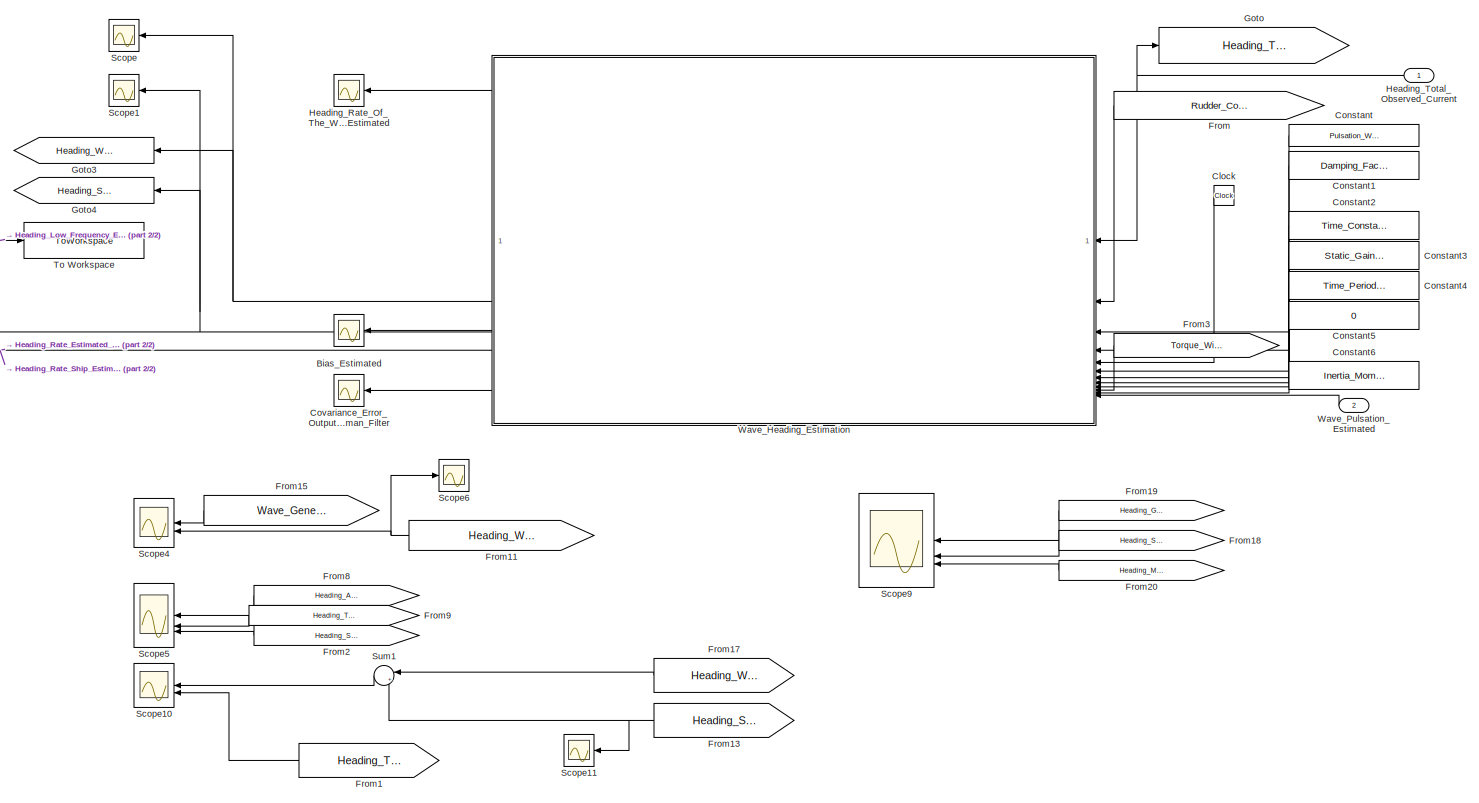
[diagram: Navigation_And_Wave_Estimator/Wave_Estimation_Kalman_Filter - part 1/2, most of the canvas]
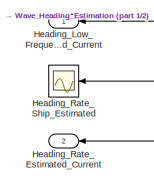
[diagram: Navigation_And_Wave_Estimator/Wave_Estimation_Kalman_Filter - part 2/2, middle left region]
BLOCK [SubSystem] Navigation_And_Wave_Estimator/Wave_Estimation_Kalman_Filter
BLOCK [Scope] Navigation_And_Wave_Estimator/Wave_Estimation_Kalman_Filter/Bias_Estimated
  Floating = off
  NumInputPorts = 1
  ScopeSpecificationString = Simulink.scopes.TimeScopeBlockCfg('CurrentConfiguration', extmgr.ConfigurationSet(extmgr.Configuration('Core','General UI',true),extmgr.Configuration('Core','Source UI',true),extmgr.Configuration('Sources','WiredSimulink',true,'DataLoggingVariableName','ScopeData9'),extmgr.Configuration('Visuals','Time Domain',true,'SerializedDisplays',{struct('MinYLimReal','-0.01134','MaxYLimReal','0.01587','YLab...<+1519ch>
BLOCK [Clock] Navigation_And_Wave_Estimator/Wave_Estimation_Kalman_Filter/Clock
BLOCK [Constant] Navigation_And_Wave_Estimator/Wave_Estimation_Kalman_Filter/Constant
  SampleTime = Time_Period_Sampling
  Value = Pulsation_Wave
BLOCK [Constant] Navigation_And_Wave_Estimator/Wave_Estimation_Kalman_Filter/Constant1
  SampleTime = Time_Period_Sampling
  Value = Damping_Factor_Waves
BLOCK [Constant] Navigation_And_Wave_Estimator/Wave_Estimation_Kalman_Filter/Constant2
  SampleTime = Time_Period_Sampling
  Value = Time_Constant_Total
BLOCK [Constant] Navigation_And_Wave_Estimator/Wave_Estimation_Kalman_Filter/Constant3
  SampleTime = Time_Period_Sampling
  Value = Static_Gain_Nomoto
BLOCK [Constant] Navigation_And_Wave_Estimator/Wave_Estimation_Kalman_Filter/Constant4
  SampleTime = Time_Period_Sampling
  Value = Time_Period_Sampling
BLOCK [Constant] Navigation_And_Wave_Estimator/Wave_Estimation_Kalman_Filter/Constant5
  Value = 0
BLOCK [Constant] Navigation_And_Wave_Estimator/Wave_Estimation_Kalman_Filter/Constant6
  Value = Inertia_Moment
BLOCK [Scope] Navigation_And_Wave_Estimator/Wave_Estimation_Kalman_Filter/Covariance_Error_Output_Kalman_Filter
  Floating = off
  NumInputPorts = 1
  ScopeSpecificationString = Simulink.scopes.TimeScopeBlockCfg('CurrentConfiguration', extmgr.ConfigurationSet(extmgr.Configuration('Core','General UI',true),extmgr.Configuration('Core','Source UI',true),extmgr.Configuration('Sources','WiredSimulink',true,'DataLoggingVariableName','ScopeData10'),extmgr.Configuration('Visuals','Time Domain',true,'SerializedDisplays',{struct('MinYLimReal','-0.08157','MaxYLimReal','0.14045','YLa...<+2963ch>
BLOCK [From] Navigation_And_Wave_Estimator/Wave_Estimation_Kalman_Filter/From
  GotoTag = Rudder_Commanded
  TagVisibility = global
BLOCK [From] Navigation_And_Wave_Estimator/Wave_Estimation_Kalman_Filter/From1
  GotoTag = Heading_Total_Observed
  TagVisibility = global
BLOCK [From] Navigation_And_Wave_Estimator/Wave_Estimation_Kalman_Filter/From11
  GotoTag = Heading_Wave_Estimated
  TagVisibility = global
BLOCK [From] Navigation_And_Wave_Estimator/Wave_Estimation_Kalman_Filter/From13
  GotoTag = Heading_Ship_Estimated
  TagVisibility = global
BLOCK [From] Navigation_And_Wave_Estimator/Wave_Estimation_Kalman_Filter/From15
  GotoTag = Wave_Generated_Signal
  TagVisibility = global
BLOCK [From] Navigation_And_Wave_Estimator/Wave_Estimation_Kalman_Filter/From17
  GotoTag = Heading_Wave_Estimated
  TagVisibility = global
BLOCK [From] Navigation_And_Wave_Estimator/Wave_Estimation_Kalman_Filter/From18
  GotoTag = Heading_Ship_Estimated
  TagVisibility = global
BLOCK [From] Navigation_And_Wave_Estimator/Wave_Estimation_Kalman_Filter/From19
  GotoTag = Heading_GPS_Noisy
  TagVisibility = global
BLOCK [From] Navigation_And_Wave_Estimator/Wave_Estimation_Kalman_Filter/From2
  GotoTag = Heading_Ship_Estimated
  TagVisibility = global
BLOCK [From] Navigation_And_Wave_Estimator/Wave_Estimation_Kalman_Filter/From20
  GotoTag = Heading_Magnetometer_Noisy
  TagVisibility = global
BLOCK [From] Navigation_And_Wave_Estimator/Wave_Estimation_Kalman_Filter/From3
  GotoTag = Torque_Wind_Generated
  TagVisibility = global
BLOCK [From] Navigation_And_Wave_Estimator/Wave_Estimation_Kalman_Filter/From8
  GotoTag = Heading_Aimed
  TagVisibility = global
BLOCK [From] Navigation_And_Wave_Estimator/Wave_Estimation_Kalman_Filter/From9
  GotoTag = Heading_Total_Wave_Control
  TagVisibility = global
BLOCK [Goto] Navigation_And_Wave_Estimator/Wave_Estimation_Kalman_Filter/Goto
  GotoTag = Heading_Total_Observed
  TagVisibility = global
BLOCK [Goto] Navigation_And_Wave_Estimator/Wave_Estimation_Kalman_Filter/Goto3
  GotoTag = Heading_Wave_Estimated
  TagVisibility = global
BLOCK [Goto] Navigation_And_Wave_Estimator/Wave_Estimation_Kalman_Filter/Goto4
  GotoTag = Heading_Ship_Estimated
  NameLocation = right
  TagVisibility = global
BLOCK [Outport] Navigation_And_Wave_Estimator/Wave_Estimation_Kalman_Filter/Heading_Low_Frequency_Estimated_Current
BLOCK [Outport] Navigation_And_Wave_Estimator/Wave_Estimation_Kalman_Filter/Heading_Rate_Estimated_Current
  Port = 2
BLOCK [Scope] Navigation_And_Wave_Estimator/Wave_Estimation_Kalman_Filter/Heading_Rate_Of_The_Waves_Estimated
  Floating = off
  NumInputPorts = 1
  ScopeSpecificationString = Simulink.scopes.TimeScopeBlockCfg('CurrentConfiguration', extmgr.ConfigurationSet(extmgr.Configuration('Core','General UI',true),extmgr.Configuration('Core','Source UI',true),extmgr.Configuration('Sources','WiredSimulink',true,'DataLoggingVariableName','ScopeData5'),extmgr.Configuration('Visuals','Time Domain',true,'SerializedDisplays',{struct('MinYLimReal','-0.10459','MaxYLimReal','0.12324','YLab...<+1507ch>
BLOCK [Scope] Navigation_And_Wave_Estimator/Wave_Estimation_Kalman_Filter/Heading_Rate_Ship_Estimated
  Floating = off
  NumInputPorts = 1
  ScopeSpecificationString = Simulink.scopes.TimeScopeBlockCfg('CurrentConfiguration', extmgr.ConfigurationSet(extmgr.Configuration('Core','General UI',true),extmgr.Configuration('Core','Source UI',true),extmgr.Configuration('Sources','WiredSimulink',true,'DataLoggingVariableName','ScopeData8'),extmgr.Configuration('Visuals','Time Domain',true,'SerializedDisplays',{struct('MinYLimReal','-20.1646','MaxYLimReal','28.37911','YLa...<+1477ch>
BLOCK [Inport] Navigation_And_Wave_Estimator/Wave_Estimation_Kalman_Filter/Heading_Total_Observed_Current
BLOCK [Scope] Navigation_And_Wave_Estimator/Wave_Estimation_Kalman_Filter/Scope
  Floating = off
  NumInputPorts = 1
  ScopeSpecificationString = Simulink.scopes.TimeScopeBlockCfg('CurrentConfiguration', extmgr.ConfigurationSet(extmgr.Configuration('Core','General UI',true),extmgr.Configuration('Core','Source UI',true),extmgr.Configuration('Sources','WiredSimulink',true,'DataLoggingVariableName','ScopeData6'),extmgr.Configuration('Visuals','Time Domain',true,'SerializedDisplays',{struct('MinYLimReal','-0.24641','MaxYLimReal','0.4777','YLabe...<+1523ch>
BLOCK [Scope] Navigation_And_Wave_Estimator/Wave_Estimation_Kalman_Filter/Scope1
  Floating = off
  NumInputPorts = 1
  ScopeSpecificationString = Simulink.scopes.TimeScopeBlockCfg('CurrentConfiguration', extmgr.ConfigurationSet(extmgr.Configuration('Core','General UI',true),extmgr.Configuration('Core','Source UI',true),extmgr.Configuration('Sources','WiredSimulink',true,'DataLoggingVariableName','ScopeData7'),extmgr.Configuration('Visuals','Time Domain',true,'SerializedDisplays',{struct('MinYLimReal','0.82894','MaxYLimReal','1.29398','YLabe...<+1553ch>
BLOCK [Scope] Navigation_And_Wave_Estimator/Wave_Estimation_Kalman_Filter/Scope10
  Floating = off
  NumInputPorts = 2
  ScopeSpecificationString = Simulink.scopes.TimeScopeBlockCfg('CurrentConfiguration', extmgr.ConfigurationSet(extmgr.Configuration('Core','General UI',true),extmgr.Configuration('Core','Source UI',true),extmgr.Configuration('Sources','WiredSimulink',true,'DataLoggingVariableName','ScopeData2'),extmgr.Configuration('Visuals','Time Domain',true,'SerializedDisplays',{struct('MinYLimReal','-0.47272','MaxYLimReal','3.53985','YLab...<+1561ch>
BLOCK [Scope] Navigation_And_Wave_Estimator/Wave_Estimation_Kalman_Filter/Scope11
  Floating = off
  NumInputPorts = 1
  ScopeSpecificationString = Simulink.scopes.TimeScopeBlockCfg('CurrentConfiguration', extmgr.ConfigurationSet(extmgr.Configuration('Core','General UI',true),extmgr.Configuration('Core','Source UI',true),extmgr.Configuration('Sources','WiredSimulink',true,'DataLoggingVariableName','ScopeData3'),extmgr.Configuration('Visuals','Time Domain',true,'SerializedDisplays',{struct('MinYLimReal','-49.37944','MaxYLimReal','184.11119','Y...<+1524ch>
BLOCK [Scope] Navigation_And_Wave_Estimator/Wave_Estimation_Kalman_Filter/Scope4
  Floating = off
  NumInputPorts = 2
  ScopeSpecificationString = Simulink.scopes.TimeScopeBlockCfg('CurrentConfiguration', extmgr.ConfigurationSet(extmgr.Configuration('Core','General UI',true),extmgr.Configuration('Core','Source UI',true),extmgr.Configuration('Sources','WiredSimulink',true,'DataLoggingVariableName','ScopeData4'),extmgr.Configuration('Visuals','Time Domain',true,'SerializedDisplays',{struct('MinYLimReal','-0.24643','MaxYLimReal','0.4777','YLabe...<+1536ch>
BLOCK [Scope] Navigation_And_Wave_Estimator/Wave_Estimation_Kalman_Filter/Scope5
  Floating = off
  NumInputPorts = 3
  ScopeSpecificationString = Simulink.scopes.TimeScopeBlockCfg('CurrentConfiguration', extmgr.ConfigurationSet(extmgr.Configuration('Core','General UI',true),extmgr.Configuration('Core','Source UI',true),extmgr.Configuration('Sources','WiredSimulink',true,'DataLoggingVariableName','ScopeData5'),extmgr.Configuration('Visuals','Time Domain',true,'SerializedDisplays',{struct('MinYLimReal','-0.37551','MaxYLimReal','3.37963','YLab...<+1607ch>
BLOCK [Scope] Navigation_And_Wave_Estimator/Wave_Estimation_Kalman_Filter/Scope6
  Floating = off
  NumInputPorts = 1
  ScopeSpecificationString = Simulink.scopes.TimeScopeBlockCfg('CurrentConfiguration', extmgr.ConfigurationSet(extmgr.Configuration('Core','General UI',true),extmgr.Configuration('Core','Source UI',true),extmgr.Configuration('Sources','WiredSimulink',true,'DataLoggingVariableName','ScopeData6'),extmgr.Configuration('Visuals','Time Domain',true,'SerializedDisplays',{struct('MinYLimReal','-0.30515','MaxYLimReal','0.34115','YLab...<+1463ch>
BLOCK [Scope] Navigation_And_Wave_Estimator/Wave_Estimation_Kalman_Filter/Scope9
  Floating = off
  NumInputPorts = 3
  ScopeSpecificationString = Simulink.scopes.TimeScopeBlockCfg('CurrentConfiguration', extmgr.ConfigurationSet(extmgr.Configuration('Core','General UI',true),extmgr.Configuration('Core','Source UI',true),extmgr.Configuration('Sources','WiredSimulink',true,'DataLoggingVariableName','ScopeData7'),extmgr.Configuration('Visuals','Time Domain',true,'SerializedDisplays',{struct('MinYLimReal','-1.95166','MaxYLimReal','6.49092','YLab...<+1560ch>
BLOCK [Sum] Navigation_And_Wave_Estimator/Wave_Estimation_Kalman_Filter/Sum1
  Inputs = |++
BLOCK [ToWorkspace] Navigation_And_Wave_Estimator/Wave_Estimation_Kalman_Filter/To Workspace
  FixptAsFi = on
  MaxDataPoints = inf
  SampleTime = Time_Period_Sampling
  SaveFormat = Timeseries
  VariableName = Heading_Kalman_Filtered
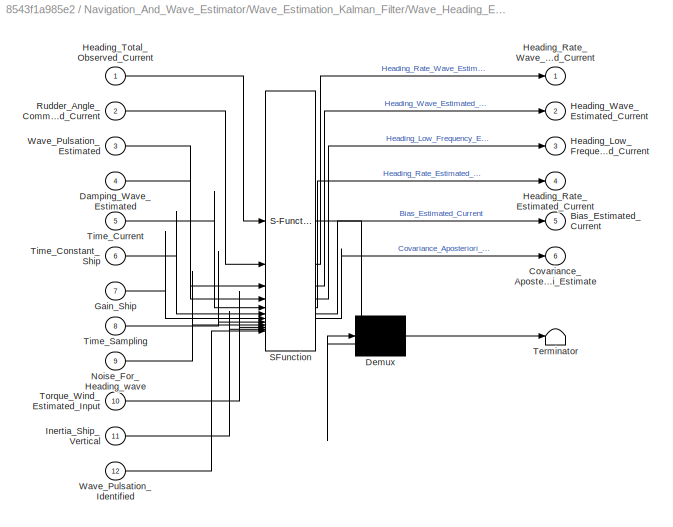
BLOCK [SubSystem] Navigation_And_Wave_Estimator/Wave_Estimation_Kalman_Filter/Wave_Heading_Estimation
  ErrorFcn = Stateflow.Translate.translate
  PermitHierarchicalResolution = ExplicitOnly
  SFBlockType = MATLAB Function
  SystemSampleTime = Time_Period_Sampling
  TreatAsAtomicUnit = on
BLOCK [Demux] Navigation_And_Wave_Estimator/Wave_Estimation_Kalman_Filter/Wave_Heading_Estimation/ Demux 
  Outputs = 1
BLOCK [S-Function] Navigation_And_Wave_Estimator/Wave_Estimation_Kalman_Filter/Wave_Heading_Estimation/ SFunction 
  EnableBusSupport = on
  FunctionName = sf_sfun
  PortCounts = [12 7]
  SFcnIsStateOwnerBlock = off
  SFunctionDeploymentMode = off
  Tag = Stateflow S-Function 4
BLOCK [Terminator] Navigation_And_Wave_Estimator/Wave_Estimation_Kalman_Filter/Wave_Heading_Estimation/ Terminator 
BLOCK [Outport] Navigation_And_Wave_Estimator/Wave_Estimation_Kalman_Filter/Wave_Heading_Estimation/Bias_Estimated_Current
  Port = 5
BLOCK [Outport] Navigation_And_Wave_Estimator/Wave_Estimation_Kalman_Filter/Wave_Heading_Estimation/Covariance_Aposteriori_Estimate
  Port = 6
BLOCK [Inport] Navigation_And_Wave_Estimator/Wave_Estimation_Kalman_Filter/Wave_Heading_Estimation/Damping_Wave_Estimated
  Port = 4
BLOCK [Inport] Navigation_And_Wave_Estimator/Wave_Estimation_Kalman_Filter/Wave_Heading_Estimation/Gain_Ship
  Port = 7
BLOCK [Outport] Navigation_And_Wave_Estimator/Wave_Estimation_Kalman_Filter/Wave_Heading_Estimation/Heading_Low_Frequency_Estimated_Current
  Port = 3
BLOCK [Outport] Navigation_And_Wave_Estimator/Wave_Estimation_Kalman_Filter/Wave_Heading_Estimation/Heading_Rate_Estimated_Current
  Port = 4
BLOCK [Outport] Navigation_And_Wave_Estimator/Wave_Estimation_Kalman_Filter/Wave_Heading_Estimation/Heading_Rate_Wave_Estimated_Current
BLOCK [Inport] Navigation_And_Wave_Estimator/Wave_Estimation_Kalman_Filter/Wave_Heading_Estimation/Heading_Total_Observed_Current
BLOCK [Outport] Navigation_And_Wave_Estimator/Wave_Estimation_Kalman_Filter/Wave_Heading_Estimation/Heading_Wave_Estimated_Current
  Port = 2
BLOCK [Inport] Navigation_And_Wave_Estimator/Wave_Estimation_Kalman_Filter/Wave_Heading_Estimation/Inertia_Ship_Vertical
  Port = 11
BLOCK [Inport] Navigation_And_Wave_Estimator/Wave_Estimation_Kalman_Filter/Wave_Heading_Estimation/Noise_For_Heading_wave
  Port = 9
BLOCK [Inport] Navigation_And_Wave_Estimator/Wave_Estimation_Kalman_Filter/Wave_Heading_Estimation/Rudder_Angle_Commanded_Current
  Port = 2
BLOCK [Inport] Navigation_And_Wave_Estimator/Wave_Estimation_Kalman_Filter/Wave_Heading_Estimation/Time_Constant_Ship
  Port = 6
BLOCK [Inport] Navigation_And_Wave_Estimator/Wave_Estimation_Kalman_Filter/Wave_Heading_Estimation/Time_Current
  Port = 5
BLOCK [Inport] Navigation_And_Wave_Estimator/Wave_Estimation_Kalman_Filter/Wave_Heading_Estimation/Time_Sampling
  Port = 8
BLOCK [Inport] Navigation_And_Wave_Estimator/Wave_Estimation_Kalman_Filter/Wave_Heading_Estimation/Torque_Wind_Estimated_Input
  Port = 10
BLOCK [Inport] Navigation_And_Wave_Estimator/Wave_Estimation_Kalman_Filter/Wave_Heading_Estimation/Wave_Pulsation_Estimated
  Port = 3
BLOCK [Inport] Navigation_And_Wave_Estimator/Wave_Estimation_Kalman_Filter/Wave_Heading_Estimation/Wave_Pulsation_Identified
  Port = 12
BLOCK [Inport] Navigation_And_Wave_Estimator/Wave_Estimation_Kalman_Filter/Wave_Pulsation_Estimated
  Port = 2
BLOCK [SubSystem] Navigation_And_Wave_Estimator/Wave_Identification_Parameters_ARMA
  ErrorFcn = Stateflow.Translate.translate
  PermitHierarchicalResolution = ExplicitOnly
  SFBlockType = MATLAB Function
  SystemSampleTime = Time_Period_Sampling
  TreatAsAtomicUnit = on
BLOCK [Demux] Navigation_And_Wave_Estimator/Wave_Identification_Parameters_ARMA/ Demux 
  Outputs = 1
BLOCK [S-Function] Navigation_And_Wave_Estimator/Wave_Identification_Parameters_ARMA/ SFunction 
  EnableBusSupport = on
  FunctionName = sf_sfun
  PortCounts = [2 3]
  SFcnIsStateOwnerBlock = off
  SFunctionDeploymentMode = off
  Tag = Stateflow S-Function 9
BLOCK [Terminator] Navigation_And_Wave_Estimator/Wave_Identification_Parameters_ARMA/ Terminator 
BLOCK [Inport] Navigation_And_Wave_Estimator/Wave_Identification_Parameters_ARMA/Heading_Wave_High_Frequency_Estimated
BLOCK [Inport] Navigation_And_Wave_Estimator/Wave_Identification_Parameters_ARMA/Time_Sampling
  Port = 2
BLOCK [Outport] Navigation_And_Wave_Estimator/Wave_Identification_Parameters_ARMA/Wave_Damping_Factor_Estimated
  Port = 2
BLOCK [Outport] Navigation_And_Wave_Estimator/Wave_Identification_Parameters_ARMA/Wave_Pulsation_Estimated
BLOCK [SubSystem] Ship_Dynamics
  PortSchema = {"entries":[{"content":{"sides":[{"content":{"connectorIds":["In1"]},"type":"ConnectorPlacement.EquallySpacedRectSide","uuid":"1262d93f-9737-49c5-b1c8-13d3f825160d"},{"content":{"connectorIds":["Out1"],"side":"RIGHT"},"type":"ConnectorPlacement.EquallySpacedRectSide","uuid":"2783823e-17f0-4da0-9b4a-e84aa912eb5f"},{"content":{"connectorIds":["In2"],"side":"TOP"},"type":"ConnectorPlacement.EquallySp...<+245ch>
BLOCK [Goto] Ship_Dynamics/Goto
  GotoTag = Heading_Total_Wave_Control
  TagVisibility = global
BLOCK [SubSystem] Ship_Dynamics/Heading_Normalization_Function
  ErrorFcn = Stateflow.Translate.translate
  PermitHierarchicalResolution = ExplicitOnly
  SFBlockType = MATLAB Function
  TreatAsAtomicUnit = on
BLOCK [Demux] Ship_Dynamics/Heading_Normalization_Function/ Demux 
  Outputs = 1
BLOCK [S-Function] Ship_Dynamics/Heading_Normalization_Function/ SFunction 
  EnableBusSupport = on
  FunctionName = sf_sfun
  PortCounts = [1 2]
  SFcnIsStateOwnerBlock = off
  SFunctionDeploymentMode = off
  Tag = Stateflow S-Function 11
BLOCK [Terminator] Ship_Dynamics/Heading_Normalization_Function/ Terminator 
BLOCK [Inport] Ship_Dynamics/Heading_Normalization_Function/Heading_Input
BLOCK [Outport] Ship_Dynamics/Heading_Normalization_Function/Heading_Normalized
BLOCK [Outport] Ship_Dynamics/Heading_Total
BLOCK [Scope] Ship_Dynamics/Heading_Total_Generated
  Floating = off
  NumInputPorts = 1
  ScopeSpecificationString = Simulink.scopes.TimeScopeBlockCfg('CurrentConfiguration', extmgr.ConfigurationSet(extmgr.Configuration('Core','General UI',true),extmgr.Configuration('Core','Source UI',true),extmgr.Configuration('Sources','WiredSimulink',true,'DataLoggingVariableName','ScopeData1'),extmgr.Configuration('Visuals','Time Domain',true,'SerializedDisplays',{struct('MinYLimReal','-0.75667','MaxYLimReal','7.05022','YLab...<+1482ch>
BLOCK [Reference] Ship_Dynamics/Radians to Degrees  REF=simulink_extras/Transformations/Radians
to Degrees
  SourceBlock = simulink_extras/Transformations/Radians\nto Degrees
  SourceType = RadiansToDegrees
BLOCK [Inport] Ship_Dynamics/Rudder_Commanded
BLOCK [Scope] Ship_Dynamics/Scope
  Floating = off
  NumInputPorts = 1
  ScopeSpecificationString = Simulink.scopes.TimeScopeBlockCfg('CurrentConfiguration', extmgr.ConfigurationSet(extmgr.Configuration('Core','General UI',true),extmgr.Configuration('Core','Source UI',true),extmgr.Configuration('Sources','WiredSimulink',true,'DataLoggingVariableName','ScopeData2'),extmgr.Configuration('Visuals','Time Domain',true,'SerializedDisplays',{struct('MinYLimReal','-21.51536','MaxYLimReal','193.63826','Y...<+1495ch>
BLOCK [Reference] Ship_Dynamics/Ship_First_Order_Transfer_Function  REF=cstblocks/LTI System
  SourceBlock = cstblocks/LTI System
  SourceType = LTI Block
BLOCK [Sum] Ship_Dynamics/Sum7
  Inputs = |++
BLOCK [Inport] Ship_Dynamics/Wave_Perturbation_Contribution
  Port = 2
NET Controller_And_Actuator/Actuator_Control:1 -> Controller_And_Actuator/Goto4:1, Controller_And_Actuator/Rudder_Commanded:1, Controller_And_Actuator/Scope1:1
LINE Controller_And_Actuator/Constant1:1 -> Controller_And_Actuator/Actuator_Control:2
LINE Controller_And_Actuator/Constant22:1 -> Controller_And_Actuator/Ship_High_Level_Loop_Controller:3
LINE Controller_And_Actuator/Constant23:1 -> Controller_And_Actuator/Ship_High_Level_Loop_Controller:4
LINE Controller_And_Actuator/Constant24:1 -> Controller_And_Actuator/Ship_High_Level_Loop_Controller:5
LINE Controller_And_Actuator/Constant25:1 -> Controller_And_Actuator/Ship_High_Level_Loop_Controller:6
LINE Controller_And_Actuator/Constant2:1 -> Controller_And_Actuator/Actuator_Control:3
LINE Controller_And_Actuator/Constant3:1 -> Controller_And_Actuator/Actuator_Control:4
LINE Controller_And_Actuator/Constant4:1 -> Controller_And_Actuator/Actuator_Control:5
LINE Controller_And_Actuator/Constant5:1 -> Controller_And_Actuator/Actuator_Control:6
NET Controller_And_Actuator/Dimensioning_Coefficient:1 -> Controller_And_Actuator/Radians to Degrees:1, Controller_And_Actuator/Scope2:1
LINE Controller_And_Actuator/From:1 -> Controller_And_Actuator/Gain:1
LINE Controller_And_Actuator/Gain:1 -> Controller_And_Actuator/Dimensioning_Coefficient:1
NET Controller_And_Actuator/Heading_Aimed:1 -> Controller_And_Actuator/Goto2:1, Controller_And_Actuator/Ship_High_Level_Loop_Controller:1
NET Controller_And_Actuator/Heading_Observed:1 -> Controller_And_Actuator/Goto3:1, Controller_And_Actuator/Ship_High_Level_Loop_Controller:2
LINE Controller_And_Actuator/Radians to Degrees:1 -> Controller_And_Actuator/Scope:1
LINE Controller_And_Actuator/Ship_High_Level_Loop_Controller:1 -> Controller_And_Actuator/Actuator_Control:1
LINE Controller_And_Actuator:1 -> Ship_Dynamics:1
LINE Environmental_Perturbations/Gain1:1 -> Environmental_Perturbations/Goto:1
LINE Environmental_Perturbations/Gain:1 -> Environmental_Perturbations/Wave_Perturbation_Contribution:1
LINE Environmental_Perturbations/Wave-Induced_Perturbation_Motion/Discrete_Sinewave_Signal_Generation:1 -> Environmental_Perturbations/Wave-Induced_Perturbation_Motion/Wave_Discretized_Transfer_Function:1
NET Environmental_Perturbations/Wave-Induced_Perturbation_Motion/Gain:1 -> Environmental_Perturbations/Wave-Induced_Perturbation_Motion/Goto2:1, Environmental_Perturbations/Wave-Induced_Perturbation_Motion/Scope5:1
NET Environmental_Perturbations/Wave-Induced_Perturbation_Motion/LTI System:1 -> Environmental_Perturbations/Wave-Induced_Perturbation_Motion/Radians to Degrees:1, Environmental_Perturbations/Wave-Induced_Perturbation_Motion/Scope3:1, Environmental_Perturbations/Wave-Induced_Perturbation_Motion/Wave_Induced_Heading:1
LINE Environmental_Perturbations/Wave-Induced_Perturbation_Motion/Radians to Degrees:1 -> Environmental_Perturbations/Wave-Induced_Perturbation_Motion/Scope1:1
LINE Environmental_Perturbations/Wave-Induced_Perturbation_Motion/Sine Wave:1 -> Environmental_Perturbations/Wave-Induced_Perturbation_Motion/LTI System:1
NET Environmental_Perturbations/Wave-Induced_Perturbation_Motion/Wave_Discretized_Transfer_Function:1 -> Environmental_Perturbations/Wave-Induced_Perturbation_Motion/Gain:1, Environmental_Perturbations/Wave-Induced_Perturbation_Motion/Scope3:2
LINE Environmental_Perturbations/Wave-Induced_Perturbation_Motion:1 -> Environmental_Perturbations/Gain:1
LINE Environmental_Perturbations/Wind_Perturbation_Torque/Constant1:1 -> Environmental_Perturbations/Wind_Perturbation_Torque/Wind_Estimator:2
LINE Environmental_Perturbations/Wind_Perturbation_Torque/Constant2:1 -> Environmental_Perturbations/Wind_Perturbation_Torque/Wind_Estimator:3
LINE Environmental_Perturbations/Wind_Perturbation_Torque/Constant3:1 -> Environmental_Perturbations/Wind_Perturbation_Torque/Wind_Estimator:4
LINE Environmental_Perturbations/Wind_Perturbation_Torque/Constant4:1 -> Environmental_Perturbations/Wind_Perturbation_Torque/Wind_Estimator:5
LINE Environmental_Perturbations/Wind_Perturbation_Torque/Constant5:1 -> Environmental_Perturbations/Wind_Perturbation_Torque/Wind_Estimator:6
LINE Environmental_Perturbations/Wind_Perturbation_Torque/Constant6:1 -> Environmental_Perturbations/Wind_Perturbation_Torque/Wind_Estimator:7
LINE Environmental_Perturbations/Wind_Perturbation_Torque/Constant:1 -> Environmental_Perturbations/Wind_Perturbation_Torque/Wind_Estimator:1
LINE Environmental_Perturbations/Wind_Perturbation_Torque/Wind_Estimator:1 -> Environmental_Perturbations/Wind_Perturbation_Torque/Scope:1
LINE Environmental_Perturbations/Wind_Perturbation_Torque/Wind_Estimator:2 -> Environmental_Perturbations/Wind_Perturbation_Torque/Scope1:1
LINE Environmental_Perturbations/Wind_Perturbation_Torque/Wind_Estimator:3 -> Environmental_Perturbations/Wind_Perturbation_Torque/Scope2:1
LINE Environmental_Perturbations/Wind_Perturbation_Torque/Wind_Estimator:4 -> Environmental_Perturbations/Wind_Perturbation_Torque/Scope3:1
LINE Environmental_Perturbations/Wind_Perturbation_Torque/Wind_Estimator:5 -> Environmental_Perturbations/Wind_Perturbation_Torque/Scope4:1
LINE Environmental_Perturbations/Wind_Perturbation_Torque/Wind_Estimator:6 -> Environmental_Perturbations/Wind_Perturbation_Torque/Scope5:1
NET Environmental_Perturbations/Wind_Perturbation_Torque/Wind_Estimator:7 -> Environmental_Perturbations/Wind_Perturbation_Torque/Scope6:1, Environmental_Perturbations/Wind_Perturbation_Torque/Torque_Wind:1
LINE Environmental_Perturbations/Wind_Perturbation_Torque:1 -> Environmental_Perturbations/Gain1:1
LINE Environmental_Perturbations:1 -> Ship_Dynamics:2
LINE Guidance_Heading/Clock1:1 -> Guidance_Heading/Guidance_Algorithm:8
LINE Guidance_Heading/Constant3:1 -> Guidance_Heading/Guidance_Algorithm:1
LINE Guidance_Heading/Constant4:1 -> Guidance_Heading/Guidance_Algorithm:2
LINE Guidance_Heading/Constant5:1 -> Guidance_Heading/Guidance_Algorithm:6
LINE Guidance_Heading/Constant6:1 -> Guidance_Heading/Guidance_Algorithm:7
NET Guidance_Heading/Guidance_Algorithm:1 -> Guidance_Heading/Goto5:1, Guidance_Heading/Heading_Aimed:1, Guidance_Heading/Heading_Aimed_Next:1
LINE Guidance_Heading/Guidance_Algorithm:2 -> Guidance_Heading/To Workspace2:1
LINE Guidance_Heading/Heading_Ship_Current:1 -> Guidance_Heading/Guidance_Algorithm:5
LINE Guidance_Heading/Position_X_Ship_Current:1 -> Guidance_Heading/Guidance_Algorithm:3
LINE Guidance_Heading/Position_Y_Ship_Current:1 -> Guidance_Heading/Guidance_Algorithm:4
LINE Guidance_Heading:1 -> Controller_And_Actuator:1
LINE Navigation_And_Wave_Estimator/Constant1:1 -> Navigation_And_Wave_Estimator/High_Pass_Filter:2
LINE Navigation_And_Wave_Estimator/Constant2:1 -> Navigation_And_Wave_Estimator/Wave_Identification_Parameters_ARMA:2
LINE Navigation_And_Wave_Estimator/Delay1:1 -> Navigation_And_Wave_Estimator/Position_X_Ship_Current_Estimated:1
LINE Navigation_And_Wave_Estimator/Delay2:1 -> Navigation_And_Wave_Estimator/Position_Y_Ship_Current_Estimated:1
LINE Navigation_And_Wave_Estimator/Delay:1 -> Navigation_And_Wave_Estimator/Heading_Low_Frequency_Filtered_Estimated:1
LINE Navigation_And_Wave_Estimator/From1:1 -> Navigation_And_Wave_Estimator/Wave_Estimation_Kalman_Filter:2
LINE Navigation_And_Wave_Estimator/From:1 -> Navigation_And_Wave_Estimator/Wave_Estimation_Kalman_Filter:1
NET Navigation_And_Wave_Estimator/Heading_Total:1 -> Navigation_And_Wave_Estimator/High_Pass_Filter:1, Navigation_And_Wave_Estimator/Sensors_Fusion_And_Filtering:1
LINE Navigation_And_Wave_Estimator/High_Pass_Filter:1 -> Navigation_And_Wave_Estimator/Wave_Identification_Parameters_ARMA:1
LINE Navigation_And_Wave_Estimator/Sensors_Fusion_And_Filtering/Clock:1 -> Navigation_And_Wave_Estimator/Sensors_Fusion_And_Filtering/Kinematics_Propagator_GPS:5
LINE Navigation_And_Wave_Estimator/Sensors_Fusion_And_Filtering/Constant1:1 -> Navigation_And_Wave_Estimator/Sensors_Fusion_And_Filtering/Kinematics_Propagator_GPS:3
LINE Navigation_And_Wave_Estimator/Sensors_Fusion_And_Filtering/Constant2:1 -> Navigation_And_Wave_Estimator/Sensors_Fusion_And_Filtering/Kinematics_Propagator_GPS:4
LINE Navigation_And_Wave_Estimator/Sensors_Fusion_And_Filtering/Constant3:1 -> Navigation_And_Wave_Estimator/Sensors_Fusion_And_Filtering/Kinematics_Propagator_GPS:6
LINE Navigation_And_Wave_Estimator/Sensors_Fusion_And_Filtering/Constant4:1 -> Navigation_And_Wave_Estimator/Sensors_Fusion_And_Filtering/Real_Navigation_Sensors_Extended_Kalman_Filter:3
LINE Navigation_And_Wave_Estimator/Sensors_Fusion_And_Filtering/Constant5:1 -> Navigation_And_Wave_Estimator/Sensors_Fusion_And_Filtering/Real_Navigation_Sensors_Extended_Kalman_Filter:6
LINE Navigation_And_Wave_Estimator/Sensors_Fusion_And_Filtering/Constant:1 -> Navigation_And_Wave_Estimator/Sensors_Fusion_And_Filtering/Kinematics_Propagator_GPS:1
LINE Navigation_And_Wave_Estimator/Sensors_Fusion_And_Filtering/From1:1 -> Navigation_And_Wave_Estimator/Sensors_Fusion_And_Filtering/Real_Navigation_Sensors_Extended_Kalman_Filter:2
LINE Navigation_And_Wave_Estimator/Sensors_Fusion_And_Filtering/From2:1 -> Navigation_And_Wave_Estimator/Sensors_Fusion_And_Filtering/Real_Navigation_Sensors_Extended_Kalman_Filter:4
LINE Navigation_And_Wave_Estimator/Sensors_Fusion_And_Filtering/From3:1 -> Navigation_And_Wave_Estimator/Sensors_Fusion_And_Filtering/Real_Navigation_Sensors_Extended_Kalman_Filter:5
LINE Navigation_And_Wave_Estimator/Sensors_Fusion_And_Filtering/From4:1 -> Navigation_And_Wave_Estimator/Sensors_Fusion_And_Filtering/Real_Navigation_Sensors_Extended_Kalman_Filter:7
LINE Navigation_And_Wave_Estimator/Sensors_Fusion_And_Filtering/From:1 -> Navigation_And_Wave_Estimator/Sensors_Fusion_And_Filtering/Real_Navigation_Sensors_Extended_Kalman_Filter:1
LINE Navigation_And_Wave_Estimator/Sensors_Fusion_And_Filtering/Heading_Total:1 -> Navigation_And_Wave_Estimator/Sensors_Fusion_And_Filtering/Kinematics_Propagator_GPS:2
LINE Navigation_And_Wave_Estimator/Sensors_Fusion_And_Filtering/Kinematics_Propagator_GPS:1 -> Navigation_And_Wave_Estimator/Sensors_Fusion_And_Filtering/Goto1:1
LINE Navigation_And_Wave_Estimator/Sensors_Fusion_And_Filtering/Kinematics_Propagator_GPS:2 -> Navigation_And_Wave_Estimator/Sensors_Fusion_And_Filtering/Goto2:1
LINE Navigation_And_Wave_Estimator/Sensors_Fusion_And_Filtering/Kinematics_Propagator_GPS:3 -> Navigation_And_Wave_Estimator/Sensors_Fusion_And_Filtering/Terminator1:1
LINE Navigation_And_Wave_Estimator/Sensors_Fusion_And_Filtering/Kinematics_Propagator_GPS:4 -> Navigation_And_Wave_Estimator/Sensors_Fusion_And_Filtering/Terminator3:1
NET Navigation_And_Wave_Estimator/Sensors_Fusion_And_Filtering/Kinematics_Propagator_GPS:5 -> Navigation_And_Wave_Estimator/Sensors_Fusion_And_Filtering/Goto3:1, Navigation_And_Wave_Estimator/Sensors_Fusion_And_Filtering/To Workspace2:1
NET Navigation_And_Wave_Estimator/Sensors_Fusion_And_Filtering/Kinematics_Propagator_GPS:6 -> Navigation_And_Wave_Estimator/Sensors_Fusion_And_Filtering/Goto4:1, Navigation_And_Wave_Estimator/Sensors_Fusion_And_Filtering/To Workspace3:1
LINE Navigation_And_Wave_Estimator/Sensors_Fusion_And_Filtering/Real_Navigation_Sensors_Extended_Kalman_Filter/Constant3:1 -> Navigation_And_Wave_Estimator/Sensors_Fusion_And_Filtering/Real_Navigation_Sensors_Extended_Kalman_Filter/Heading_Sensor_Fusion:8
LINE Navigation_And_Wave_Estimator/Sensors_Fusion_And_Filtering/Real_Navigation_Sensors_Extended_Kalman_Filter/Constant4:1 -> Navigation_And_Wave_Estimator/Sensors_Fusion_And_Filtering/Real_Navigation_Sensors_Extended_Kalman_Filter/Heading_Sensor_Fusion:11
LINE Navigation_And_Wave_Estimator/Sensors_Fusion_And_Filtering/Real_Navigation_Sensors_Extended_Kalman_Filter/Electronic_Compass_Magnetometer_Sensor/Constant:1 -> Navigation_And_Wave_Estimator/Sensors_Fusion_And_Filtering/Real_Navigation_Sensors_Extended_Kalman_Filter/Electronic_Compass_Magnetometer_Sensor/Sum:1
LINE Navigation_And_Wave_Estimator/Sensors_Fusion_And_Filtering/Real_Navigation_Sensors_Extended_Kalman_Filter/Electronic_Compass_Magnetometer_Sensor/From7:1 -> Navigation_And_Wave_Estimator/Sensors_Fusion_And_Filtering/Real_Navigation_Sensors_Extended_Kalman_Filter/Electronic_Compass_Magnetometer_Sensor/Sum:2
NET Navigation_And_Wave_Estimator/Sensors_Fusion_And_Filtering/Real_Navigation_Sensors_Extended_Kalman_Filter/Electronic_Compass_Magnetometer_Sensor/Sum:1 -> Navigation_And_Wave_Estimator/Sensors_Fusion_And_Filtering/Real_Navigation_Sensors_Extended_Kalman_Filter/Electronic_Compass_Magnetometer_Sensor/Goto2:1, Navigation_And_Wave_Estimator/Sensors_Fusion_And_Filtering/Real_Navigation_Sensors_Extended_Kalman_Filter/Electronic_Compass_Magnetometer_Sensor/Heading_Compass:1, Navigation_And_Wave_Estimator/Sensors_Fusion_And_Filtering/Real_Navigation_Sensors_Extended_Kalman_Filter/Electronic_Compass_Magnetometer_Sensor/Scope8:1, Navigation_And_Wave_Estimator/Sensors_Fusion_And_Filtering/Real_Navigation_Sensors_Extended_Kalman_Filter/Electronic_Compass_Magnetometer_Sensor/To Workspace1:1
LINE Navigation_And_Wave_Estimator/Sensors_Fusion_And_Filtering/Real_Navigation_Sensors_Extended_Kalman_Filter/Electronic_Compass_Magnetometer_Sensor:1 -> Navigation_And_Wave_Estimator/Sensors_Fusion_And_Filtering/Real_Navigation_Sensors_Extended_Kalman_Filter/Goto8:1
LINE Navigation_And_Wave_Estimator/Sensors_Fusion_And_Filtering/Real_Navigation_Sensors_Extended_Kalman_Filter/From1:1 -> Navigation_And_Wave_Estimator/Sensors_Fusion_And_Filtering/Real_Navigation_Sensors_Extended_Kalman_Filter/Heading_Sensor_Fusion:2
LINE Navigation_And_Wave_Estimator/Sensors_Fusion_And_Filtering/Real_Navigation_Sensors_Extended_Kalman_Filter/From2:1 -> Navigation_And_Wave_Estimator/Sensors_Fusion_And_Filtering/Real_Navigation_Sensors_Extended_Kalman_Filter/Heading_Sensor_Fusion:3
LINE Navigation_And_Wave_Estimator/Sensors_Fusion_And_Filtering/Real_Navigation_Sensors_Extended_Kalman_Filter/From3:1 -> Navigation_And_Wave_Estimator/Sensors_Fusion_And_Filtering/Real_Navigation_Sensors_Extended_Kalman_Filter/Heading_Sensor_Fusion:4
LINE Navigation_And_Wave_Estimator/Sensors_Fusion_And_Filtering/Real_Navigation_Sensors_Extended_Kalman_Filter/From4:1 -> Navigation_And_Wave_Estimator/Sensors_Fusion_And_Filtering/Real_Navigation_Sensors_Extended_Kalman_Filter/Heading_Sensor_Fusion:5
LINE Navigation_And_Wave_Estimator/Sensors_Fusion_And_Filtering/Real_Navigation_Sensors_Extended_Kalman_Filter/From5:1 -> Navigation_And_Wave_Estimator/Sensors_Fusion_And_Filtering/Real_Navigation_Sensors_Extended_Kalman_Filter/Heading_Sensor_Fusion:6
LINE Navigation_And_Wave_Estimator/Sensors_Fusion_And_Filtering/Real_Navigation_Sensors_Extended_Kalman_Filter/From6:1 -> Navigation_And_Wave_Estimator/Sensors_Fusion_And_Filtering/Real_Navigation_Sensors_Extended_Kalman_Filter/Heading_Sensor_Fusion:7
LINE Navigation_And_Wave_Estimator/Sensors_Fusion_And_Filtering/Real_Navigation_Sensors_Extended_Kalman_Filter/From7:1 -> Navigation_And_Wave_Estimator/Sensors_Fusion_And_Filtering/Real_Navigation_Sensors_Extended_Kalman_Filter/Heading_Sensor_Fusion:9
LINE Navigation_And_Wave_Estimator/Sensors_Fusion_And_Filtering/Real_Navigation_Sensors_Extended_Kalman_Filter/From8:1 -> Navigation_And_Wave_Estimator/Sensors_Fusion_And_Filtering/Real_Navigation_Sensors_Extended_Kalman_Filter/Heading_Sensor_Fusion:10
LINE Navigation_And_Wave_Estimator/Sensors_Fusion_And_Filtering/Real_Navigation_Sensors_Extended_Kalman_Filter/From:1 -> Navigation_And_Wave_Estimator/Sensors_Fusion_And_Filtering/Real_Navigation_Sensors_Extended_Kalman_Filter/Heading_Sensor_Fusion:1
NET Navigation_And_Wave_Estimator/Sensors_Fusion_And_Filtering/Real_Navigation_Sensors_Extended_Kalman_Filter/GPS_Sensor/Degrees to Radians:1 -> Navigation_And_Wave_Estimator/Sensors_Fusion_And_Filtering/Real_Navigation_Sensors_Extended_Kalman_Filter/GPS_Sensor/Goto1:1, Navigation_And_Wave_Estimator/Sensors_Fusion_And_Filtering/Real_Navigation_Sensors_Extended_Kalman_Filter/GPS_Sensor/Heading_Ship_GPS:1, Navigation_And_Wave_Estimator/Sensors_Fusion_And_Filtering/Real_Navigation_Sensors_Extended_Kalman_Filter/GPS_Sensor/Scope2:2, Navigation_And_Wave_Estimator/Sensors_Fusion_And_Filtering/Real_Navigation_Sensors_Extended_Kalman_Filter/GPS_Sensor/Scope3:1, Navigation_And_Wave_Estimator/Sensors_Fusion_And_Filtering/Real_Navigation_Sensors_Extended_Kalman_Filter/GPS_Sensor/To Workspace:1
NET Navigation_And_Wave_Estimator/Sensors_Fusion_And_Filtering/Real_Navigation_Sensors_Extended_Kalman_Filter/GPS_Sensor/Demux:1 -> Navigation_And_Wave_Estimator/Sensors_Fusion_And_Filtering/Real_Navigation_Sensors_Extended_Kalman_Filter/GPS_Sensor/Goto3:1, Navigation_And_Wave_Estimator/Sensors_Fusion_And_Filtering/Real_Navigation_Sensors_Extended_Kalman_Filter/GPS_Sensor/Position_X_Ship_GPS:1, Navigation_And_Wave_Estimator/Sensors_Fusion_And_Filtering/Real_Navigation_Sensors_Extended_Kalman_Filter/GPS_Sensor/Scope:1
NET Navigation_And_Wave_Estimator/Sensors_Fusion_And_Filtering/Real_Navigation_Sensors_Extended_Kalman_Filter/GPS_Sensor/Demux:2 -> Navigation_And_Wave_Estimator/Sensors_Fusion_And_Filtering/Real_Navigation_Sensors_Extended_Kalman_Filter/GPS_Sensor/Position_Y_Ship_GPS:1, Navigation_And_Wave_Estimator/Sensors_Fusion_And_Filtering/Real_Navigation_Sensors_Extended_Kalman_Filter/GPS_Sensor/Scope1:1
LINE Navigation_And_Wave_Estimator/Sensors_Fusion_And_Filtering/Real_Navigation_Sensors_Extended_Kalman_Filter/GPS_Sensor/Demux:3 -> Navigation_And_Wave_Estimator/Sensors_Fusion_And_Filtering/Real_Navigation_Sensors_Extended_Kalman_Filter/GPS_Sensor/Terminator4:1
LINE Navigation_And_Wave_Estimator/Sensors_Fusion_And_Filtering/Real_Navigation_Sensors_Extended_Kalman_Filter/GPS_Sensor/From4:1 -> Navigation_And_Wave_Estimator/Sensors_Fusion_And_Filtering/Real_Navigation_Sensors_Extended_Kalman_Filter/GPS_Sensor/Scope2:1
LINE Navigation_And_Wave_Estimator/Sensors_Fusion_And_Filtering/Real_Navigation_Sensors_Extended_Kalman_Filter/GPS_Sensor/GPS:1 -> Navigation_And_Wave_Estimator/Sensors_Fusion_And_Filtering/Real_Navigation_Sensors_Extended_Kalman_Filter/GPS_Sensor/LLA_To_ENU:1
LINE Navigation_And_Wave_Estimator/Sensors_Fusion_And_Filtering/Real_Navigation_Sensors_Extended_Kalman_Filter/GPS_Sensor/GPS:2 -> Navigation_And_Wave_Estimator/Sensors_Fusion_And_Filtering/Real_Navigation_Sensors_Extended_Kalman_Filter/GPS_Sensor/Velocity_Norm_Calculation:1
LINE Navigation_And_Wave_Estimator/Sensors_Fusion_And_Filtering/Real_Navigation_Sensors_Extended_Kalman_Filter/GPS_Sensor/GPS:3 -> Navigation_And_Wave_Estimator/Sensors_Fusion_And_Filtering/Real_Navigation_Sensors_Extended_Kalman_Filter/GPS_Sensor/Terminator1:1
LINE Navigation_And_Wave_Estimator/Sensors_Fusion_And_Filtering/Real_Navigation_Sensors_Extended_Kalman_Filter/GPS_Sensor/GPS:4 -> Navigation_And_Wave_Estimator/Sensors_Fusion_And_Filtering/Real_Navigation_Sensors_Extended_Kalman_Filter/GPS_Sensor/Degrees to Radians:1
LINE Navigation_And_Wave_Estimator/Sensors_Fusion_And_Filtering/Real_Navigation_Sensors_Extended_Kalman_Filter/GPS_Sensor/LLA_To_ENU:1 -> Navigation_And_Wave_Estimator/Sensors_Fusion_And_Filtering/Real_Navigation_Sensors_Extended_Kalman_Filter/GPS_Sensor/Demux:1
LINE Navigation_And_Wave_Estimator/Sensors_Fusion_And_Filtering/Real_Navigation_Sensors_Extended_Kalman_Filter/GPS_Sensor/Mux1:1 -> Navigation_And_Wave_Estimator/Sensors_Fusion_And_Filtering/Real_Navigation_Sensors_Extended_Kalman_Filter/GPS_Sensor/Transpose1:1
LINE Navigation_And_Wave_Estimator/Sensors_Fusion_And_Filtering/Real_Navigation_Sensors_Extended_Kalman_Filter/GPS_Sensor/Mux:1 -> Navigation_And_Wave_Estimator/Sensors_Fusion_And_Filtering/Real_Navigation_Sensors_Extended_Kalman_Filter/GPS_Sensor/Transpose:1
LINE Navigation_And_Wave_Estimator/Sensors_Fusion_And_Filtering/Real_Navigation_Sensors_Extended_Kalman_Filter/GPS_Sensor/Position_X_Ship_Current:1 -> Navigation_And_Wave_Estimator/Sensors_Fusion_And_Filtering/Real_Navigation_Sensors_Extended_Kalman_Filter/GPS_Sensor/Mux:1
LINE Navigation_And_Wave_Estimator/Sensors_Fusion_And_Filtering/Real_Navigation_Sensors_Extended_Kalman_Filter/GPS_Sensor/Position_Y_Ship_Current:1 -> Navigation_And_Wave_Estimator/Sensors_Fusion_And_Filtering/Real_Navigation_Sensors_Extended_Kalman_Filter/GPS_Sensor/Mux:2
LINE Navigation_And_Wave_Estimator/Sensors_Fusion_And_Filtering/Real_Navigation_Sensors_Extended_Kalman_Filter/GPS_Sensor/Position_Z_Ship_Current:1 -> Navigation_And_Wave_Estimator/Sensors_Fusion_And_Filtering/Real_Navigation_Sensors_Extended_Kalman_Filter/GPS_Sensor/Mux:3
LINE Navigation_And_Wave_Estimator/Sensors_Fusion_And_Filtering/Real_Navigation_Sensors_Extended_Kalman_Filter/GPS_Sensor/Rate Transition1:1 -> Navigation_And_Wave_Estimator/Sensors_Fusion_And_Filtering/Real_Navigation_Sensors_Extended_Kalman_Filter/GPS_Sensor/GPS:2
LINE Navigation_And_Wave_Estimator/Sensors_Fusion_And_Filtering/Real_Navigation_Sensors_Extended_Kalman_Filter/GPS_Sensor/Rate Transition:1 -> Navigation_And_Wave_Estimator/Sensors_Fusion_And_Filtering/Real_Navigation_Sensors_Extended_Kalman_Filter/GPS_Sensor/GPS:1
LINE Navigation_And_Wave_Estimator/Sensors_Fusion_And_Filtering/Real_Navigation_Sensors_Extended_Kalman_Filter/GPS_Sensor/Transpose1:1 -> Navigation_And_Wave_Estimator/Sensors_Fusion_And_Filtering/Real_Navigation_Sensors_Extended_Kalman_Filter/GPS_Sensor/Rate Transition1:1
LINE Navigation_And_Wave_Estimator/Sensors_Fusion_And_Filtering/Real_Navigation_Sensors_Extended_Kalman_Filter/GPS_Sensor/Transpose:1 -> Navigation_And_Wave_Estimator/Sensors_Fusion_And_Filtering/Real_Navigation_Sensors_Extended_Kalman_Filter/GPS_Sensor/Rate Transition:1
LINE Navigation_And_Wave_Estimator/Sensors_Fusion_And_Filtering/Real_Navigation_Sensors_Extended_Kalman_Filter/GPS_Sensor/Velocity_Norm_Calculation:1 -> Navigation_And_Wave_Estimator/Sensors_Fusion_And_Filtering/Real_Navigation_Sensors_Extended_Kalman_Filter/GPS_Sensor/Velocity_Ship_GPS:1
LINE Navigation_And_Wave_Estimator/Sensors_Fusion_And_Filtering/Real_Navigation_Sensors_Extended_Kalman_Filter/GPS_Sensor/Velocity_X_Ship_Current:1 -> Navigation_And_Wave_Estimator/Sensors_Fusion_And_Filtering/Real_Navigation_Sensors_Extended_Kalman_Filter/GPS_Sensor/Mux1:1
LINE Navigation_And_Wave_Estimator/Sensors_Fusion_And_Filtering/Real_Navigation_Sensors_Extended_Kalman_Filter/GPS_Sensor/Velocity_Y_Ship_Current:1 -> Navigation_And_Wave_Estimator/Sensors_Fusion_And_Filtering/Real_Navigation_Sensors_Extended_Kalman_Filter/GPS_Sensor/Mux1:2
LINE Navigation_And_Wave_Estimator/Sensors_Fusion_And_Filtering/Real_Navigation_Sensors_Extended_Kalman_Filter/GPS_Sensor/Velocity_Z_Ship_Current:1 -> Navigation_And_Wave_Estimator/Sensors_Fusion_And_Filtering/Real_Navigation_Sensors_Extended_Kalman_Filter/GPS_Sensor/Mux1:3
LINE Navigation_And_Wave_Estimator/Sensors_Fusion_And_Filtering/Real_Navigation_Sensors_Extended_Kalman_Filter/GPS_Sensor:1 -> Navigation_And_Wave_Estimator/Sensors_Fusion_And_Filtering/Real_Navigation_Sensors_Extended_Kalman_Filter/Goto:1
LINE Navigation_And_Wave_Estimator/Sensors_Fusion_And_Filtering/Real_Navigation_Sensors_Extended_Kalman_Filter/GPS_Sensor:2 -> Navigation_And_Wave_Estimator/Sensors_Fusion_And_Filtering/Real_Navigation_Sensors_Extended_Kalman_Filter/Goto1:1
LINE Navigation_And_Wave_Estimator/Sensors_Fusion_And_Filtering/Real_Navigation_Sensors_Extended_Kalman_Filter/GPS_Sensor:3 -> Navigation_And_Wave_Estimator/Sensors_Fusion_And_Filtering/Real_Navigation_Sensors_Extended_Kalman_Filter/Goto2:1
LINE Navigation_And_Wave_Estimator/Sensors_Fusion_And_Filtering/Real_Navigation_Sensors_Extended_Kalman_Filter/GPS_Sensor:4 -> Navigation_And_Wave_Estimator/Sensors_Fusion_And_Filtering/Real_Navigation_Sensors_Extended_Kalman_Filter/Goto3:1
LINE Navigation_And_Wave_Estimator/Sensors_Fusion_And_Filtering/Real_Navigation_Sensors_Extended_Kalman_Filter/Heading:1 -> Navigation_And_Wave_Estimator/Sensors_Fusion_And_Filtering/Real_Navigation_Sensors_Extended_Kalman_Filter/INS_Sensor:7
LINE Navigation_And_Wave_Estimator/Sensors_Fusion_And_Filtering/Real_Navigation_Sensors_Extended_Kalman_Filter/Heading_Sensor_Fusion:1 -> Navigation_And_Wave_Estimator/Sensors_Fusion_And_Filtering/Real_Navigation_Sensors_Extended_Kalman_Filter/Position_X_Ship_Fusioned_Filtered:1
LINE Navigation_And_Wave_Estimator/Sensors_Fusion_And_Filtering/Real_Navigation_Sensors_Extended_Kalman_Filter/Heading_Sensor_Fusion:2 -> Navigation_And_Wave_Estimator/Sensors_Fusion_And_Filtering/Real_Navigation_Sensors_Extended_Kalman_Filter/Position_Y_Ship_Fusioned_Filtered:1
LINE Navigation_And_Wave_Estimator/Sensors_Fusion_And_Filtering/Real_Navigation_Sensors_Extended_Kalman_Filter/Heading_Sensor_Fusion:3 -> Navigation_And_Wave_Estimator/Sensors_Fusion_And_Filtering/Real_Navigation_Sensors_Extended_Kalman_Filter/Heading_Ship_Fusioned_Filtered:1
LINE Navigation_And_Wave_Estimator/Sensors_Fusion_And_Filtering/Real_Navigation_Sensors_Extended_Kalman_Filter/Heading_Sensor_Fusion:4 -> Navigation_And_Wave_Estimator/Sensors_Fusion_And_Filtering/Real_Navigation_Sensors_Extended_Kalman_Filter/Velocity_Ship_Fusioned_Filtered:1
LINE Navigation_And_Wave_Estimator/Sensors_Fusion_And_Filtering/Real_Navigation_Sensors_Extended_Kalman_Filter/INS_Sensor/Constant1:1 -> Navigation_And_Wave_Estimator/Sensors_Fusion_And_Filtering/Real_Navigation_Sensors_Extended_Kalman_Filter/INS_Sensor/Mux2:1
LINE Navigation_And_Wave_Estimator/Sensors_Fusion_And_Filtering/Real_Navigation_Sensors_Extended_Kalman_Filter/INS_Sensor/Constant2:1 -> Navigation_And_Wave_Estimator/Sensors_Fusion_And_Filtering/Real_Navigation_Sensors_Extended_Kalman_Filter/INS_Sensor/Mux2:2
LINE Navigation_And_Wave_Estimator/Sensors_Fusion_And_Filtering/Real_Navigation_Sensors_Extended_Kalman_Filter/INS_Sensor/Degrees to Radians1:1 -> Navigation_And_Wave_Estimator/Sensors_Fusion_And_Filtering/Real_Navigation_Sensors_Extended_Kalman_Filter/INS_Sensor/Demux2:1
LINE Navigation_And_Wave_Estimator/Sensors_Fusion_And_Filtering/Real_Navigation_Sensors_Extended_Kalman_Filter/INS_Sensor/Demux1:1 -> Navigation_And_Wave_Estimator/Sensors_Fusion_And_Filtering/Real_Navigation_Sensors_Extended_Kalman_Filter/INS_Sensor/Position_X_Ship_INS:1
LINE Navigation_And_Wave_Estimator/Sensors_Fusion_And_Filtering/Real_Navigation_Sensors_Extended_Kalman_Filter/INS_Sensor/Demux1:2 -> Navigation_And_Wave_Estimator/Sensors_Fusion_And_Filtering/Real_Navigation_Sensors_Extended_Kalman_Filter/INS_Sensor/Position_Y_Ship_INS:1
LINE Navigation_And_Wave_Estimator/Sensors_Fusion_And_Filtering/Real_Navigation_Sensors_Extended_Kalman_Filter/INS_Sensor/Demux1:3 -> Navigation_And_Wave_Estimator/Sensors_Fusion_And_Filtering/Real_Navigation_Sensors_Extended_Kalman_Filter/INS_Sensor/Terminator:1
LINE Navigation_And_Wave_Estimator/Sensors_Fusion_And_Filtering/Real_Navigation_Sensors_Extended_Kalman_Filter/INS_Sensor/Demux2:1 -> Navigation_And_Wave_Estimator/Sensors_Fusion_And_Filtering/Real_Navigation_Sensors_Extended_Kalman_Filter/INS_Sensor/Scope7:1
LINE Navigation_And_Wave_Estimator/Sensors_Fusion_And_Filtering/Real_Navigation_Sensors_Extended_Kalman_Filter/INS_Sensor/Demux2:2 -> Navigation_And_Wave_Estimator/Sensors_Fusion_And_Filtering/Real_Navigation_Sensors_Extended_Kalman_Filter/INS_Sensor/Scope9:1
NET Navigation_And_Wave_Estimator/Sensors_Fusion_And_Filtering/Real_Navigation_Sensors_Extended_Kalman_Filter/INS_Sensor/Demux2:3 -> Navigation_And_Wave_Estimator/Sensors_Fusion_And_Filtering/Real_Navigation_Sensors_Extended_Kalman_Filter/INS_Sensor/Heading_Ship_INS:1, Navigation_And_Wave_Estimator/Sensors_Fusion_And_Filtering/Real_Navigation_Sensors_Extended_Kalman_Filter/INS_Sensor/Scope10:1
NET Navigation_And_Wave_Estimator/Sensors_Fusion_And_Filtering/Real_Navigation_Sensors_Extended_Kalman_Filter/INS_Sensor/Heading_Ship_Current:1 -> Navigation_And_Wave_Estimator/Sensors_Fusion_And_Filtering/Real_Navigation_Sensors_Extended_Kalman_Filter/INS_Sensor/Mux2:3, Navigation_And_Wave_Estimator/Sensors_Fusion_And_Filtering/Real_Navigation_Sensors_Extended_Kalman_Filter/INS_Sensor/Scope11:1
LINE Navigation_And_Wave_Estimator/Sensors_Fusion_And_Filtering/Real_Navigation_Sensors_Extended_Kalman_Filter/INS_Sensor/INS:1 -> Navigation_And_Wave_Estimator/Sensors_Fusion_And_Filtering/Real_Navigation_Sensors_Extended_Kalman_Filter/INS_Sensor/Demux1:1
LINE Navigation_And_Wave_Estimator/Sensors_Fusion_And_Filtering/Real_Navigation_Sensors_Extended_Kalman_Filter/INS_Sensor/INS:2 -> Navigation_And_Wave_Estimator/Sensors_Fusion_And_Filtering/Real_Navigation_Sensors_Extended_Kalman_Filter/INS_Sensor/Velocity_Norm_Calculation:1
LINE Navigation_And_Wave_Estimator/Sensors_Fusion_And_Filtering/Real_Navigation_Sensors_Extended_Kalman_Filter/INS_Sensor/INS:3 -> Navigation_And_Wave_Estimator/Sensors_Fusion_And_Filtering/Real_Navigation_Sensors_Extended_Kalman_Filter/INS_Sensor/Degrees to Radians1:1
LINE Navigation_And_Wave_Estimator/Sensors_Fusion_And_Filtering/Real_Navigation_Sensors_Extended_Kalman_Filter/INS_Sensor/Mux1:1 -> Navigation_And_Wave_Estimator/Sensors_Fusion_And_Filtering/Real_Navigation_Sensors_Extended_Kalman_Filter/INS_Sensor/Transpose1:1
LINE Navigation_And_Wave_Estimator/Sensors_Fusion_And_Filtering/Real_Navigation_Sensors_Extended_Kalman_Filter/INS_Sensor/Mux2:1 -> Navigation_And_Wave_Estimator/Sensors_Fusion_And_Filtering/Real_Navigation_Sensors_Extended_Kalman_Filter/INS_Sensor/Transpose2:1
LINE Navigation_And_Wave_Estimator/Sensors_Fusion_And_Filtering/Real_Navigation_Sensors_Extended_Kalman_Filter/INS_Sensor/Mux:1 -> Navigation_And_Wave_Estimator/Sensors_Fusion_And_Filtering/Real_Navigation_Sensors_Extended_Kalman_Filter/INS_Sensor/Transpose:1
LINE Navigation_And_Wave_Estimator/Sensors_Fusion_And_Filtering/Real_Navigation_Sensors_Extended_Kalman_Filter/INS_Sensor/Position_Ship_X_Current:1 -> Navigation_And_Wave_Estimator/Sensors_Fusion_And_Filtering/Real_Navigation_Sensors_Extended_Kalman_Filter/INS_Sensor/Mux:1
LINE Navigation_And_Wave_Estimator/Sensors_Fusion_And_Filtering/Real_Navigation_Sensors_Extended_Kalman_Filter/INS_Sensor/Position_Ship_Y_Current:1 -> Navigation_And_Wave_Estimator/Sensors_Fusion_And_Filtering/Real_Navigation_Sensors_Extended_Kalman_Filter/INS_Sensor/Mux:2
LINE Navigation_And_Wave_Estimator/Sensors_Fusion_And_Filtering/Real_Navigation_Sensors_Extended_Kalman_Filter/INS_Sensor/Position_Ship_Z_Current:1 -> Navigation_And_Wave_Estimator/Sensors_Fusion_And_Filtering/Real_Navigation_Sensors_Extended_Kalman_Filter/INS_Sensor/Mux:3
LINE Navigation_And_Wave_Estimator/Sensors_Fusion_And_Filtering/Real_Navigation_Sensors_Extended_Kalman_Filter/INS_Sensor/Radians to Degrees:1 -> Navigation_And_Wave_Estimator/Sensors_Fusion_And_Filtering/Real_Navigation_Sensors_Extended_Kalman_Filter/INS_Sensor/INS:3
LINE Navigation_And_Wave_Estimator/Sensors_Fusion_And_Filtering/Real_Navigation_Sensors_Extended_Kalman_Filter/INS_Sensor/Rate Transition1:1 -> Navigation_And_Wave_Estimator/Sensors_Fusion_And_Filtering/Real_Navigation_Sensors_Extended_Kalman_Filter/INS_Sensor/INS:2
LINE Navigation_And_Wave_Estimator/Sensors_Fusion_And_Filtering/Real_Navigation_Sensors_Extended_Kalman_Filter/INS_Sensor/Rate Transition2:1 -> Navigation_And_Wave_Estimator/Sensors_Fusion_And_Filtering/Real_Navigation_Sensors_Extended_Kalman_Filter/INS_Sensor/Radians to Degrees:1
LINE Navigation_And_Wave_Estimator/Sensors_Fusion_And_Filtering/Real_Navigation_Sensors_Extended_Kalman_Filter/INS_Sensor/Rate Transition:1 -> Navigation_And_Wave_Estimator/Sensors_Fusion_And_Filtering/Real_Navigation_Sensors_Extended_Kalman_Filter/INS_Sensor/INS:1
LINE Navigation_And_Wave_Estimator/Sensors_Fusion_And_Filtering/Real_Navigation_Sensors_Extended_Kalman_Filter/INS_Sensor/Transpose1:1 -> Navigation_And_Wave_Estimator/Sensors_Fusion_And_Filtering/Real_Navigation_Sensors_Extended_Kalman_Filter/INS_Sensor/Rate Transition1:1
LINE Navigation_And_Wave_Estimator/Sensors_Fusion_And_Filtering/Real_Navigation_Sensors_Extended_Kalman_Filter/INS_Sensor/Transpose2:1 -> Navigation_And_Wave_Estimator/Sensors_Fusion_And_Filtering/Real_Navigation_Sensors_Extended_Kalman_Filter/INS_Sensor/Rate Transition2:1
LINE Navigation_And_Wave_Estimator/Sensors_Fusion_And_Filtering/Real_Navigation_Sensors_Extended_Kalman_Filter/INS_Sensor/Transpose:1 -> Navigation_And_Wave_Estimator/Sensors_Fusion_And_Filtering/Real_Navigation_Sensors_Extended_Kalman_Filter/INS_Sensor/Rate Transition:1
LINE Navigation_And_Wave_Estimator/Sensors_Fusion_And_Filtering/Real_Navigation_Sensors_Extended_Kalman_Filter/INS_Sensor/Velocity_Norm_Calculation:1 -> Navigation_And_Wave_Estimator/Sensors_Fusion_And_Filtering/Real_Navigation_Sensors_Extended_Kalman_Filter/INS_Sensor/Velocity_Norm_INS:1
LINE Navigation_And_Wave_Estimator/Sensors_Fusion_And_Filtering/Real_Navigation_Sensors_Extended_Kalman_Filter/INS_Sensor/Velocity_Ship_X_Current:1 -> Navigation_And_Wave_Estimator/Sensors_Fusion_And_Filtering/Real_Navigation_Sensors_Extended_Kalman_Filter/INS_Sensor/Mux1:1
LINE Navigation_And_Wave_Estimator/Sensors_Fusion_And_Filtering/Real_Navigation_Sensors_Extended_Kalman_Filter/INS_Sensor/Velocity_Ship_Y_Current:1 -> Navigation_And_Wave_Estimator/Sensors_Fusion_And_Filtering/Real_Navigation_Sensors_Extended_Kalman_Filter/INS_Sensor/Mux1:2
LINE Navigation_And_Wave_Estimator/Sensors_Fusion_And_Filtering/Real_Navigation_Sensors_Extended_Kalman_Filter/INS_Sensor/Velocity_Ship_Z_Current:1 -> Navigation_And_Wave_Estimator/Sensors_Fusion_And_Filtering/Real_Navigation_Sensors_Extended_Kalman_Filter/INS_Sensor/Mux1:3
LINE Navigation_And_Wave_Estimator/Sensors_Fusion_And_Filtering/Real_Navigation_Sensors_Extended_Kalman_Filter/INS_Sensor:1 -> Navigation_And_Wave_Estimator/Sensors_Fusion_And_Filtering/Real_Navigation_Sensors_Extended_Kalman_Filter/Goto4:1
LINE Navigation_And_Wave_Estimator/Sensors_Fusion_And_Filtering/Real_Navigation_Sensors_Extended_Kalman_Filter/INS_Sensor:2 -> Navigation_And_Wave_Estimator/Sensors_Fusion_And_Filtering/Real_Navigation_Sensors_Extended_Kalman_Filter/Goto5:1
LINE Navigation_And_Wave_Estimator/Sensors_Fusion_And_Filtering/Real_Navigation_Sensors_Extended_Kalman_Filter/INS_Sensor:3 -> Navigation_And_Wave_Estimator/Sensors_Fusion_And_Filtering/Real_Navigation_Sensors_Extended_Kalman_Filter/Goto6:1
LINE Navigation_And_Wave_Estimator/Sensors_Fusion_And_Filtering/Real_Navigation_Sensors_Extended_Kalman_Filter/INS_Sensor:4 -> Navigation_And_Wave_Estimator/Sensors_Fusion_And_Filtering/Real_Navigation_Sensors_Extended_Kalman_Filter/Goto7:1
NET Navigation_And_Wave_Estimator/Sensors_Fusion_And_Filtering/Real_Navigation_Sensors_Extended_Kalman_Filter/Position_X_Ship_Current:1 -> Navigation_And_Wave_Estimator/Sensors_Fusion_And_Filtering/Real_Navigation_Sensors_Extended_Kalman_Filter/GPS_Sensor:1, Navigation_And_Wave_Estimator/Sensors_Fusion_And_Filtering/Real_Navigation_Sensors_Extended_Kalman_Filter/INS_Sensor:1
NET Navigation_And_Wave_Estimator/Sensors_Fusion_And_Filtering/Real_Navigation_Sensors_Extended_Kalman_Filter/Position_Y_Ship_Current:1 -> Navigation_And_Wave_Estimator/Sensors_Fusion_And_Filtering/Real_Navigation_Sensors_Extended_Kalman_Filter/GPS_Sensor:2, Navigation_And_Wave_Estimator/Sensors_Fusion_And_Filtering/Real_Navigation_Sensors_Extended_Kalman_Filter/INS_Sensor:2
NET Navigation_And_Wave_Estimator/Sensors_Fusion_And_Filtering/Real_Navigation_Sensors_Extended_Kalman_Filter/Position_Z_Ship_Current:1 -> Navigation_And_Wave_Estimator/Sensors_Fusion_And_Filtering/Real_Navigation_Sensors_Extended_Kalman_Filter/GPS_Sensor:3, Navigation_And_Wave_Estimator/Sensors_Fusion_And_Filtering/Real_Navigation_Sensors_Extended_Kalman_Filter/INS_Sensor:3
NET Navigation_And_Wave_Estimator/Sensors_Fusion_And_Filtering/Real_Navigation_Sensors_Extended_Kalman_Filter/Velocity_X_Ship_Current:1 -> Navigation_And_Wave_Estimator/Sensors_Fusion_And_Filtering/Real_Navigation_Sensors_Extended_Kalman_Filter/GPS_Sensor:4, Navigation_And_Wave_Estimator/Sensors_Fusion_And_Filtering/Real_Navigation_Sensors_Extended_Kalman_Filter/INS_Sensor:4
NET Navigation_And_Wave_Estimator/Sensors_Fusion_And_Filtering/Real_Navigation_Sensors_Extended_Kalman_Filter/Velocity_Y_Ship_Current:1 -> Navigation_And_Wave_Estimator/Sensors_Fusion_And_Filtering/Real_Navigation_Sensors_Extended_Kalman_Filter/GPS_Sensor:5, Navigation_And_Wave_Estimator/Sensors_Fusion_And_Filtering/Real_Navigation_Sensors_Extended_Kalman_Filter/INS_Sensor:5
NET Navigation_And_Wave_Estimator/Sensors_Fusion_And_Filtering/Real_Navigation_Sensors_Extended_Kalman_Filter/Velocity_Z_Ship_Current:1 -> Navigation_And_Wave_Estimator/Sensors_Fusion_And_Filtering/Real_Navigation_Sensors_Extended_Kalman_Filter/GPS_Sensor:6, Navigation_And_Wave_Estimator/Sensors_Fusion_And_Filtering/Real_Navigation_Sensors_Extended_Kalman_Filter/INS_Sensor:6
NET Navigation_And_Wave_Estimator/Sensors_Fusion_And_Filtering/Real_Navigation_Sensors_Extended_Kalman_Filter:1 -> Navigation_And_Wave_Estimator/Sensors_Fusion_And_Filtering/Goto:1, Navigation_And_Wave_Estimator/Sensors_Fusion_And_Filtering/Position_Ship_X_Current_Filtered:1, Navigation_And_Wave_Estimator/Sensors_Fusion_And_Filtering/Scope1:1, Navigation_And_Wave_Estimator/Sensors_Fusion_And_Filtering/To Workspace:1
NET Navigation_And_Wave_Estimator/Sensors_Fusion_And_Filtering/Real_Navigation_Sensors_Extended_Kalman_Filter:2 -> Navigation_And_Wave_Estimator/Sensors_Fusion_And_Filtering/Position_Ship_Y_Current_Filtered:1, Navigation_And_Wave_Estimator/Sensors_Fusion_And_Filtering/Scope2:1, Navigation_And_Wave_Estimator/Sensors_Fusion_And_Filtering/To Workspace1:1
LINE Navigation_And_Wave_Estimator/Sensors_Fusion_And_Filtering/Real_Navigation_Sensors_Extended_Kalman_Filter:3 -> Navigation_And_Wave_Estimator/Sensors_Fusion_And_Filtering/Heading_Ship_Current_Filtered:1
LINE Navigation_And_Wave_Estimator/Sensors_Fusion_And_Filtering/Real_Navigation_Sensors_Extended_Kalman_Filter:4 -> Navigation_And_Wave_Estimator/Sensors_Fusion_And_Filtering/Scope4:1
LINE Navigation_And_Wave_Estimator/Sensors_Fusion_And_Filtering:1 -> Navigation_And_Wave_Estimator/Delay1:1
LINE Navigation_And_Wave_Estimator/Sensors_Fusion_And_Filtering:2 -> Navigation_And_Wave_Estimator/Delay2:1
LINE Navigation_And_Wave_Estimator/Sensors_Fusion_And_Filtering:3 -> Navigation_And_Wave_Estimator/Goto:1
LINE Navigation_And_Wave_Estimator/Wave_Estimation_Kalman_Filter/Clock:1 -> Navigation_And_Wave_Estimator/Wave_Estimation_Kalman_Filter/Wave_Heading_Estimation:5
LINE Navigation_And_Wave_Estimator/Wave_Estimation_Kalman_Filter/Constant1:1 -> Navigation_And_Wave_Estimator/Wave_Estimation_Kalman_Filter/Wave_Heading_Estimation:4
LINE Navigation_And_Wave_Estimator/Wave_Estimation_Kalman_Filter/Constant2:1 -> Navigation_And_Wave_Estimator/Wave_Estimation_Kalman_Filter/Wave_Heading_Estimation:6
LINE Navigation_And_Wave_Estimator/Wave_Estimation_Kalman_Filter/Constant3:1 -> Navigation_And_Wave_Estimator/Wave_Estimation_Kalman_Filter/Wave_Heading_Estimation:7
LINE Navigation_And_Wave_Estimator/Wave_Estimation_Kalman_Filter/Constant4:1 -> Navigation_And_Wave_Estimator/Wave_Estimation_Kalman_Filter/Wave_Heading_Estimation:8
LINE Navigation_And_Wave_Estimator/Wave_Estimation_Kalman_Filter/Constant5:1 -> Navigation_And_Wave_Estimator/Wave_Estimation_Kalman_Filter/Wave_Heading_Estimation:9
LINE Navigation_And_Wave_Estimator/Wave_Estimation_Kalman_Filter/Constant6:1 -> Navigation_And_Wave_Estimator/Wave_Estimation_Kalman_Filter/Wave_Heading_Estimation:11
LINE Navigation_And_Wave_Estimator/Wave_Estimation_Kalman_Filter/Constant:1 -> Navigation_And_Wave_Estimator/Wave_Estimation_Kalman_Filter/Wave_Heading_Estimation:3
NET Navigation_And_Wave_Estimator/Wave_Estimation_Kalman_Filter/From11:1 -> Navigation_And_Wave_Estimator/Wave_Estimation_Kalman_Filter/Scope4:2, Navigation_And_Wave_Estimator/Wave_Estimation_Kalman_Filter/Scope6:1
NET Navigation_And_Wave_Estimator/Wave_Estimation_Kalman_Filter/From13:1 -> Navigation_And_Wave_Estimator/Wave_Estimation_Kalman_Filter/Scope11:1, Navigation_And_Wave_Estimator/Wave_Estimation_Kalman_Filter/Sum1:2
LINE Navigation_And_Wave_Estimator/Wave_Estimation_Kalman_Filter/From15:1 -> Navigation_And_Wave_Estimator/Wave_Estimation_Kalman_Filter/Scope4:1
LINE Navigation_And_Wave_Estimator/Wave_Estimation_Kalman_Filter/From17:1 -> Navigation_And_Wave_Estimator/Wave_Estimation_Kalman_Filter/Sum1:1
LINE Navigation_And_Wave_Estimator/Wave_Estimation_Kalman_Filter/From18:1 -> Navigation_And_Wave_Estimator/Wave_Estimation_Kalman_Filter/Scope9:2
LINE Navigation_And_Wave_Estimator/Wave_Estimation_Kalman_Filter/From19:1 -> Navigation_And_Wave_Estimator/Wave_Estimation_Kalman_Filter/Scope9:1
LINE Navigation_And_Wave_Estimator/Wave_Estimation_Kalman_Filter/From1:1 -> Navigation_And_Wave_Estimator/Wave_Estimation_Kalman_Filter/Scope10:2
LINE Navigation_And_Wave_Estimator/Wave_Estimation_Kalman_Filter/From20:1 -> Navigation_And_Wave_Estimator/Wave_Estimation_Kalman_Filter/Scope9:3
LINE Navigation_And_Wave_Estimator/Wave_Estimation_Kalman_Filter/From2:1 -> Navigation_And_Wave_Estimator/Wave_Estimation_Kalman_Filter/Scope5:3
LINE Navigation_And_Wave_Estimator/Wave_Estimation_Kalman_Filter/From3:1 -> Navigation_And_Wave_Estimator/Wave_Estimation_Kalman_Filter/Wave_Heading_Estimation:10
LINE Navigation_And_Wave_Estimator/Wave_Estimation_Kalman_Filter/From8:1 -> Navigation_And_Wave_Estimator/Wave_Estimation_Kalman_Filter/Scope5:1
LINE Navigation_And_Wave_Estimator/Wave_Estimation_Kalman_Filter/From9:1 -> Navigation_And_Wave_Estimator/Wave_Estimation_Kalman_Filter/Scope5:2
LINE Navigation_And_Wave_Estimator/Wave_Estimation_Kalman_Filter/From:1 -> Navigation_And_Wave_Estimator/Wave_Estimation_Kalman_Filter/Wave_Heading_Estimation:2
NET Navigation_And_Wave_Estimator/Wave_Estimation_Kalman_Filter/Heading_Total_Observed_Current:1 -> Navigation_And_Wave_Estimator/Wave_Estimation_Kalman_Filter/Goto:1, Navigation_And_Wave_Estimator/Wave_Estimation_Kalman_Filter/Wave_Heading_Estimation:1
LINE Navigation_And_Wave_Estimator/Wave_Estimation_Kalman_Filter/Sum1:1 -> Navigation_And_Wave_Estimator/Wave_Estimation_Kalman_Filter/Scope10:1
LINE Navigation_And_Wave_Estimator/Wave_Estimation_Kalman_Filter/Wave_Heading_Estimation:1 -> Navigation_And_Wave_Estimator/Wave_Estimation_Kalman_Filter/Heading_Rate_Of_The_Waves_Estimated:1
NET Navigation_And_Wave_Estimator/Wave_Estimation_Kalman_Filter/Wave_Heading_Estimation:2 -> Navigation_And_Wave_Estimator/Wave_Estimation_Kalman_Filter/Goto3:1, Navigation_And_Wave_Estimator/Wave_Estimation_Kalman_Filter/Scope:1
NET Navigation_And_Wave_Estimator/Wave_Estimation_Kalman_Filter/Wave_Heading_Estimation:3 -> Navigation_And_Wave_Estimator/Wave_Estimation_Kalman_Filter/Goto4:1, Navigation_And_Wave_Estimator/Wave_Estimation_Kalman_Filter/Heading_Low_Frequency_Estimated_Current:1, Navigation_And_Wave_Estimator/Wave_Estimation_Kalman_Filter/Scope1:1, Navigation_And_Wave_Estimator/Wave_Estimation_Kalman_Filter/To Workspace:1
NET Navigation_And_Wave_Estimator/Wave_Estimation_Kalman_Filter/Wave_Heading_Estimation:4 -> Navigation_And_Wave_Estimator/Wave_Estimation_Kalman_Filter/Heading_Rate_Estimated_Current:1, Navigation_And_Wave_Estimator/Wave_Estimation_Kalman_Filter/Heading_Rate_Ship_Estimated:1
LINE Navigation_And_Wave_Estimator/Wave_Estimation_Kalman_Filter/Wave_Heading_Estimation:5 -> Navigation_And_Wave_Estimator/Wave_Estimation_Kalman_Filter/Bias_Estimated:1
LINE Navigation_And_Wave_Estimator/Wave_Estimation_Kalman_Filter/Wave_Heading_Estimation:6 -> Navigation_And_Wave_Estimator/Wave_Estimation_Kalman_Filter/Covariance_Error_Output_Kalman_Filter:1
LINE Navigation_And_Wave_Estimator/Wave_Estimation_Kalman_Filter/Wave_Pulsation_Estimated:1 -> Navigation_And_Wave_Estimator/Wave_Estimation_Kalman_Filter/Wave_Heading_Estimation:12
LINE Navigation_And_Wave_Estimator/Wave_Estimation_Kalman_Filter:1 -> Navigation_And_Wave_Estimator/Delay:1
LINE Navigation_And_Wave_Estimator/Wave_Estimation_Kalman_Filter:2 -> Navigation_And_Wave_Estimator/Scope2:1
NET Navigation_And_Wave_Estimator/Wave_Identification_Parameters_ARMA:1 -> Navigation_And_Wave_Estimator/Goto1:1, Navigation_And_Wave_Estimator/Scope1:1
LINE Navigation_And_Wave_Estimator/Wave_Identification_Parameters_ARMA:2 -> Navigation_And_Wave_Estimator/Scope:1
NET Navigation_And_Wave_Estimator:1 -> Controller_And_Actuator:2, Guidance_Heading:3
LINE Navigation_And_Wave_Estimator:2 -> Guidance_Heading:1
LINE Navigation_And_Wave_Estimator:3 -> Guidance_Heading:2
NET Ship_Dynamics/Heading_Normalization_Function:1 -> Ship_Dynamics/Goto:1, Ship_Dynamics/Heading_Total:1, Ship_Dynamics/Heading_Total_Generated:1, Ship_Dynamics/Radians to Degrees:1
LINE Ship_Dynamics/Radians to Degrees:1 -> Ship_Dynamics/Scope:1
LINE Ship_Dynamics/Rudder_Commanded:1 -> Ship_Dynamics/Ship_First_Order_Transfer_Function:1
LINE Ship_Dynamics/Ship_First_Order_Transfer_Function:1 -> Ship_Dynamics/Sum7:1
LINE Ship_Dynamics/Sum7:1 -> Ship_Dynamics/Heading_Normalization_Function:1
LINE Ship_Dynamics/Wave_Perturbation_Contribution:1 -> Ship_Dynamics/Sum7:2
LINE Ship_Dynamics:1 -> Navigation_And_Wave_Estimator:1
note: NET lines group one-source signal fan-out (src -> all destinations, sorted); 1:1 wires keep LINE
CHART Navigation_And_Wave_Estimator/Sensors_Fusion_And_Filtering/Real_Navigation_Sensors_Extended_Kalman_Filter/Heading_Sensor_Fusion states=1 transitions=1
  STATE_LABEL 'eML_blk_kernel()'
  STATE_LABEL 'SCRIPT:\nfunction [Position_Ship_X_Current_Filtered,...\n          Position_Ship_Y_Current_Filtered,...\n          Heading_Ship_Current_Filtered,...\n          Velocity_Current_Filtered] = Navigation_Kalman_Sensor_Fusion(Position_Ship_X_Current_GPS,...\n                                                                       Position_Ship_Y_Current_GPS,...\n                                                ...<+3608ch>'
CHART Navigation_And_Wave_Estimator/Sensors_Fusion_And_Filtering/Real_Navigation_Sensors_Extended_Kalman_Filter/GPS_Sensor/LLA_To_ENU states=1 transitions=1
  STATE_LABEL 'eML_blk_kernel()'
  STATE_LABEL 'SCRIPT:\nfunction ENU_GPS_Perturbed_Coordinates = Conversion_LLA_To_ENU(LLA_Coordinates)\n\n% Reference point:\nReference_Point_Port_Mahon = [43.059023,3.002915,0];\nSemi_Major_Axis = 6378137.0;\nFlattening = 1/298.25;\n\n% This function serves as a mean to convert LLA coordinates to ENU\n% coordinates:\nENU_GPS_Perturbed_Coordinates = LLA_To_ENU(LLA_Coordinates(1),LLA_Coordinates(2),LLA_Coordinates(3),...\n...<+215ch>'
CHART Navigation_And_Wave_Estimator/Sensors_Fusion_And_Filtering/Real_Navigation_Sensors_Extended_Kalman_Filter/GPS_Sensor/Velocity_Norm_Calculation states=1 transitions=1
  STATE_LABEL 'eML_blk_kernel()'
  STATE_LABEL 'SCRIPT:\nfunction Velocity_Norm_Current = Velocity_Norm(Velocity_Input_Vector_Current)\n\nVelocity_Norm_Current = sqrt(Velocity_Input_Vector_Current(1)^2 + Velocity_Input_Vector_Current(2)^2 + Velocity_Input_Vector_Current(3)^2);\n\nend\n'
CHART Environmental_Perturbations/Wind_Perturbation_Torque/Wind_Estimator states=1 transitions=1
  STATE_LABEL 'eML_blk_kernel()'
  STATE_LABEL 'SCRIPT:\nfunction [Wind_Angle_Generated,...\n          Wind_Velocity_Generated,...\n          Wind_Speed,...\n          Wind_Direction,...\n          Yaw_Wind_Coefficient_Current,...\n          Heading_Induced_Wind,...\n          Torque_Wind] = Wind_Estimator(Velocity_Ship,...\n                                        Table_Wind_Coefficients,...\n                                        Lenght_Ship_Overall,....<+915ch>'
CHART Navigation_And_Wave_Estimator/Wave_Identification_Parameters_ARMA states=1 transitions=1
  STATE_LABEL 'eML_blk_kernel()'
  STATE_LABEL 'SCRIPT:\nfunction [Wave_Pulsation_Estimated,...\n          Wave_Damping_Factor_Estimated] = Wave_Parameters_Identification_ARMA(Heading_Wave_High_Frequency_Estimated,...\n                                                                               Time_Sampling)\n\n% Two stage Recursive Extended least squares algorithm to estimate the wave\n% pulsation and damping factor:\n[Wave_Pulsation_Estimated,......<+183ch>'
CHART Navigation_And_Wave_Estimator/High_Pass_Filter states=1 transitions=1
  STATE_LABEL 'eML_blk_kernel()'
  STATE_LABEL 'SCRIPT:\nfunction Heading_Filtered_Ouput= High_Pass_Wave_Filter(Heading_Unfiltered_Input,...\n                                                       Time_Sampling)\n\n% Online numerical high-pass filter for pre-processing of the heading for\n% identification:\nHeading_Filtered_Ouput = High_Pass_Wave_Filter_Identification(Heading_Unfiltered_Input,...\n                                                      ...<+29ch>'
CHART Ship_Dynamics/Heading_Normalization_Function states=1 transitions=1
  STATE_LABEL 'eML_blk_kernel()'
  STATE_LABEL 'SCRIPT:\nfunction Heading_Normalized = Heading_Normalization(Heading_Input)\n\n% This function has the purpose of normalizing the heading angle avoiding\n% non-physical values:\nHeading_Normalized = mod(Heading_Input, 2*pi);\n\nend\n'
CHART Navigation_And_Wave_Estimator/Sensors_Fusion_And_Filtering/Real_Navigation_Sensors_Extended_Kalman_Filter/INS_Sensor/Velocity_Norm_Calculation states=1 transitions=1
  STATE_LABEL 'eML_blk_kernel()'
  STATE_LABEL 'SCRIPT:\nfunction Velocity_Norm_Current = Velocity_Norm(Velocity_Input_Vector_Current)\n\nVelocity_Norm_Current = sqrt(Velocity_Input_Vector_Current(1)^2 + Velocity_Input_Vector_Current(2)^2 + Velocity_Input_Vector_Current(3)^2);\n\nend\n'
CHART Controller_And_Actuator/Ship_High_Level_Loop_Controller states=1 transitions=1
  STATE_LABEL 'eML_blk_kernel()'
  STATE_LABEL 'SCRIPT:\nfunction Rudder_Angle_Elaborated_Current = PDF_Controller(Heading_Aimed_Current,...\n                                                          Heading_Observed_Current,...\n                                                          Gain_Proportional,...\n                                                          Gain_Filter,...\n                                                          Gain_Deri...<+756ch>'
CHART Guidance_Heading/Guidance_Algorithm states=1 transitions=1
  STATE_LABEL 'eML_blk_kernel()'
  STATE_LABEL 'SCRIPT:\nfunction [Heading_Aimed_Next,Time_End_Guidance] = Guidance_Waypoints_Following(Velocity_Current,...\n                                                                               Waypoints,...\n                                                                               Position_X_Ship_Current,...\n                                                                               Position_Y_Sh...<+1337ch>'
CHART Controller_And_Actuator/Actuator_Control states=1 transitions=1
  STATE_LABEL 'eML_blk_kernel()'
  STATE_LABEL 'SCRIPT:\nfunction Rudder_Commanded_Elaborated_Current = Linear_Actuator_First_Order(Rudder_Commanded_High_Level_Loop_Current,...\n                                                                           Rudder_Angle_Maximal,...\n                                                                           Rudder_Angle_Minimal,...\n                                                                        ...<+1052ch>'
CHART Navigation_And_Wave_Estimator/Sensors_Fusion_And_Filtering/Kinematics_Propagator_GPS states=1 transitions=1
  STATE_LABEL 'eML_blk_kernel()'
  STATE_LABEL 'SCRIPT:\nfunction [Position_X_Ship_Compass_Next,...\n          Position_Y_Ship_Compass_Next,...\n          Acceleration_X_Ship_Next,...\n          Acceleration_Y_Ship_Next,...\n          Velocity_X_Ship_Next_Local,...\n          Velocity_Y_Ship_Next_Local] = Kinematics_Propagation(Velocity_Current,...\n                                                               Heading_Angle_Current_Mes,...\n          ...<+2864ch>'
CHART Navigation_And_Wave_Estimator/Wave_Estimation_Kalman_Filter/Wave_Heading_Estimation states=1 transitions=1
  STATE_LABEL 'eML_blk_kernel()'
  STATE_LABEL 'SCRIPT:\nfunction [Heading_Rate_Wave_Estimated_Current,...\n          Heading_Wave_Estimated_Current,...\n          Heading_Low_Frequency_Estimated_Current,...\n          Heading_Rate_Estimated_Current,...\n          Bias_Estimated_Current,...\n          Covariance_Aposteriori_Estimate]= Kalman_Filter_Wave_Estimation(Heading_Total_Observed_Current,...\n                                                    ...<+2440ch>'
CHART  states=0 transitions=0
CHART  states=0 transitions=0
CHART  states=0 transitions=0
CHART  states=0 transitions=0
CHART  states=0 transitions=0
CHART  states=0 transitions=0
CHART  states=0 transitions=0
CHART  states=0 transitions=0
CHART  states=0 transitions=0
CHART  states=0 transitions=0
CHART  states=0 transitions=0
CHART  states=0 transitions=0
CHART  states=0 transitions=0
